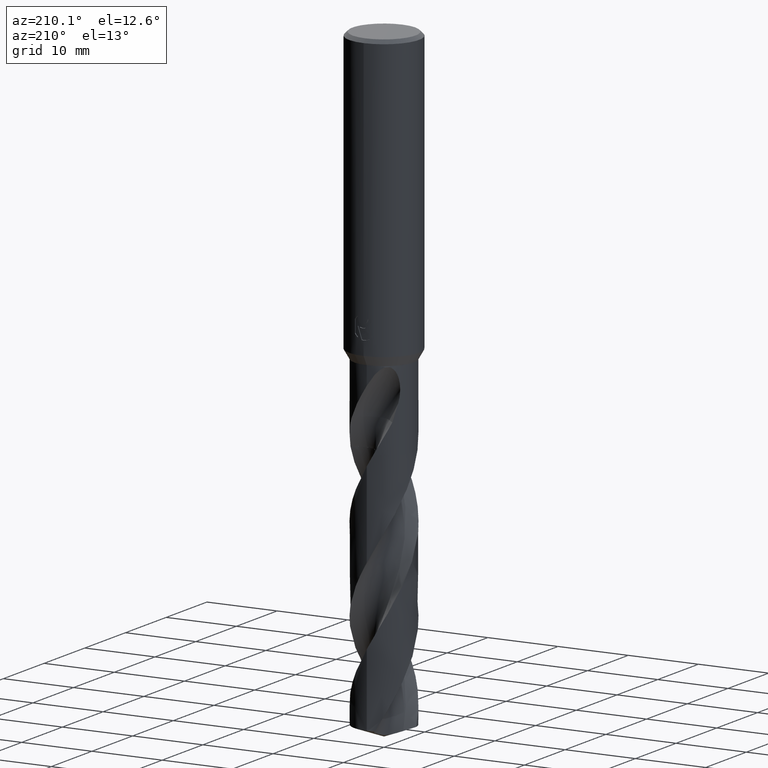
[diagram: clean part render]
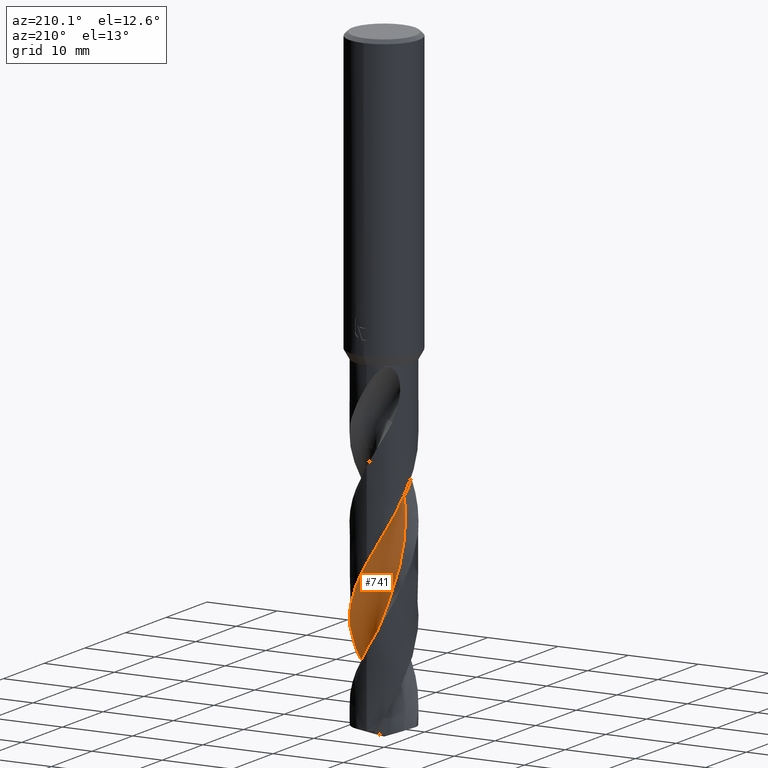
[diagram: same view with one face highlighted and labeled with its STEP entity id]
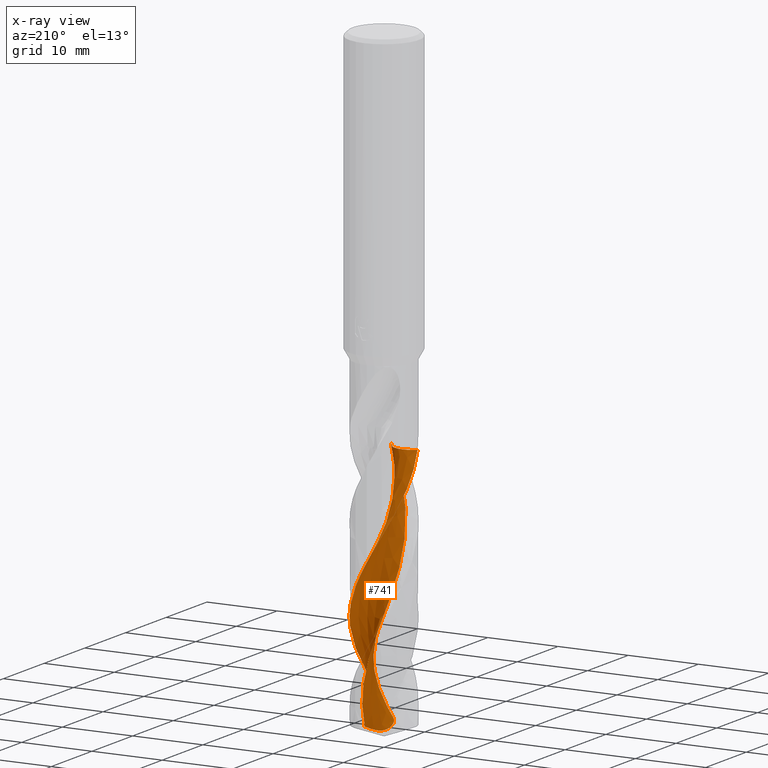
[diagram: x-ray of the same camera — body ghosted, the highlighted face saturated]
A machine part, auxiliary view. The second image highlights one B-rep face of the part: STEP entity #741.
The next image is the same camera in x-ray: the body ghosted, the highlighted face saturated — about 0% of this face is hidden behind the body in this view.
In plain terms, the highlighted face is a freeform B-spline surface patch.
Its self-contained STEP definition (entity closure, byte-faithful):
#287=VERTEX_POINT('',#810);
#395=EDGE_CURVE('',#625,#659,#926,.T.);
#407=EDGE_CURVE('',#535,#625,#940,.T.);
#417=EDGE_CURVE('',#287,#535,#951,.T.);
#535=VERTEX_POINT('',#1077);
#567=VERTEX_POINT('',#1110);
#575=EDGE_CURVE('',#567,#287,#1118,.T.);
#625=VERTEX_POINT('',#1173);
#659=VERTEX_POINT('',#1211);
#705=EDGE_CURVE('',#659,#567,#1260,.T.);
#741=ADVANCED_FACE('',(#1300),#1301,.F.);
#810=CARTESIAN_POINT('',(2.6717971082152,0.138602749724818,-88.0262377526549));
#926=B_SPLINE_CURVE_WITH_KNOTS('',3,(#2744,#2745,#2746,#2747,#2748,#2749,#2750,#2751,#2752,#2753,#2754,#2755,#2756,#2757,#2758,#2759,#2760,#2761,#2762,#2763,#2764,#2765,#2766,#2767,#2768,#2769,#2770,#2771,#2772,#2773,#2774,#2775,#2776,#2777,#2778,#2779,#2780,#2781,#2782,#2783,#2784,#2785,#2786,#2787,#2788,#2789,#2790,#2791,#2792,#2793,#2794,#2795,#2796,#2797,#2798,#2799,#2800,#2801,#2802,#2803),.UNSPECIFIED.,.F.,.F.,(4,2,2,2,2,2,2,2,2,2,2,2,2,2,2,2,2,2,2,2,2,2,2,2,2,2,2,2,2,4),(0.0,2.29751554229338,3.85419713761857,4.21570429836474,5.77993959018392,7.88072847854698,9.23150955527223,10.3599611600164,11.6848246941048,12.3580886024831,13.3478919543972,14.8108387208206,17.1088663479608,18.761461086923,18.8123461574409,21.0045814881553,22.2759081016618,23.4786645164808,24.1627645835341,25.1394573892711,26.3488862223994,28.4471992355647,29.8002890490246,31.7044106817296,33.1766600241367,33.6204326449799,35.1793906356561,37.745772083954,38.3878729434457,40.3069231356241),.UNSPECIFIED.);
#940=B_SPLINE_CURVE_WITH_KNOTS('',3,(#2820,#2821,#2822,#2823,#2824,#2825,#2826,#2827,#2828,#2829,#2830,#2831,#2832,#2833,#2834,#2835,#2836,#2837,#2838,#2839,#2840,#2841,#2842,#2843,#2844,#2845,#2846,#2847,#2848,#2849,#2850,#2851,#2852,#2853,#2854,#2855,#2856,#2857,#2858,#2859,#2860,#2861,#2862,#2863,#2864,#2865,#2866,#2867,#2868,#2869,#2870,#2871,#2872,#2873,#2874,#2875,#2876,#2877,#2878,#2879),.UNSPECIFIED.,.F.,.F.,(4,2,2,2,2,2,2,2,2,2,2,2,2,2,2,2,2,2,2,2,2,2,2,2,2,2,2,2,2,4),(0.0,2.29751554229338,3.85419713761857,4.21570429836474,5.77993959018392,7.88072847854698,9.23150955527223,10.3599611600164,11.6848246941048,12.3580886024831,13.3478919543972,14.8108387208206,17.1088663479608,18.761461086923,18.8123461574409,21.0045814881553,22.2759081016618,23.4786645164808,24.1627645835341,25.1394573892711,26.3488862223994,28.4471992355647,29.8002890490246,31.7044106817296,33.1766600241367,33.6204326449799,35.1793906356561,37.745772083954,38.3878729434457,40.3069231356241),.UNSPECIFIED.);
#951=B_SPLINE_CURVE_WITH_KNOTS('',3,(#2953,#2954,#2955,#2956,#2957,#2958,#2959,#2960,#2961,#2962,#2963,#2964,#2965,#2966,#2967,#2968,#2969,#2970,#2971,#2972),.UNSPECIFIED.,.F.,.F.,(4,2,2,2,2,2,2,2,2,4),(0.0,1.76841711961089,2.97238221567186,4.11861401664552,5.40423584894144,6.79944650857476,8.37565722612227,10.137460798221,11.1985623902722,12.2592229806516),.UNSPECIFIED.);
#1077=CARTESIAN_POINT('',(1.07965947315375,-4.11057604503668,-87.4531265043686));
#1110=CARTESIAN_POINT('',(0.42546679125039,-2.63978069602382,-52.605));
#1118=B_SPLINE_CURVE_WITH_KNOTS('',3,(#5065,#5066,#5067,#5068,#5069,#5070,#5071,#5072,#5073,#5074,#5075,#5076,#5077,#5078,#5079,#5080,#5081,#5082,#5083,#5084,#5085,#5086,#5087,#5088,#5089,#5090,#5091,#5092,#5093,#5094,#5095,#5096,#5097,#5098,#5099,#5100,#5101,#5102,#5103,#5104,#5105,#5106,#5107,#5108,#5109,#5110,#5111,#5112,#5113,#5114,#5115,#5116,#5117),.UNSPECIFIED.,.F.,.F.,(4,1,2,2,2,2,1,2,1,2,1,2,1,2,1,2,1,2,1,2,1,2,1,2,1,2,1,2,1,2,1,2,1,4),(0.0,0.815275673980478,1.63055134796096,3.26110269592191,4.89165404388287,6.52220539184382,8.15275673980478,9.78330808776573,11.4138594357267,13.0444107836876,14.6749621316486,16.3055134796096,17.9360648275705,19.5666161755315,21.1971675234924,22.8277188714534,24.4582702194143,26.0888215673753,27.7193729153362,29.3499242632972,30.9804756112581,32.6110269592191,34.2415783071801,35.872129655141,37.502681003102,39.1332323510629,40.7637836990239,42.3943350469848,44.0248863949458,45.6554377429067,47.2859890908677,48.9165404388286,50.5470917867896,52.1776431347506),.UNSPECIFIED.);
#1173=CARTESIAN_POINT('',(1.16591792519443E-012,4.24993918034888,-66.2555765582582));
#1211=CARTESIAN_POINT('',(-4.07639185603204,-1.20194825138327,-52.605));
#1260=B_SPLINE_CURVE_WITH_KNOTS('',3,(#5892,#5893,#5894,#5895,#5896,#5897,#5898,#5899,#5900,#5901,#5902,#5903,#5904,#5905,#5906,#5907,#5908,#5909,#5910,#5911),.UNSPECIFIED.,.F.,.F.,(4,2,2,2,2,2,2,2,2,4),(-8.92554476637759,-8.33529420912808,-7.74494474639423,-6.63765661109346,-5.5304814986396,-4.4238278081354,-3.31780039597833,-2.21213484421377,-1.10634482706692,-0.0),.UNSPECIFIED.);
#1300=FACE_OUTER_BOUND('',#6609,.T.);
#1301=B_SPLINE_SURFACE_WITH_KNOTS('',3,3,((#6610,#6611,#6612,#6613,#6614,#6615,#6616,#6617,#6618,#6619,#6620,#6621,#6622,#6623,#6624,#6625,#6626,#6627,#6628,#6629,#6630,#6631,#6632,#6633,#6634,#6635,#6636,#6637,#6638,#6639,#6640,#6641,#6642,#6643,#6644,#6645,#6646,#6647,#6648,#6649,#6650,#6651,#6652,#6653,#6654,#6655,#6656,#6657,#6658,#6659,#6660,#6661,#6662),(#6663,#6664,#6665,#6666,#6667,#6668,#6669,#6670,#6671,#6672,#6673,#6674,#6675,#6676,#6677,#6678,#6679,#6680,#6681,#6682,#6683,#6684,#6685,#6686,#6687,#6688,#6689,#6690,#6691,#6692,#6693,#6694,#6695,#6696,#6697,#6698,#6699,#6700,#6701,#6702,#6703,#6704,#6705,#6706,#6707,#6708,#6709,#6710,#6711,#6712,#6713,#6714,#6715),(#6716,#6717,#6718,#6719,#6720,#6721,#6722,#6723,#6724,#6725,#6726,#6727,#6728,#6729,#6730,#6731,#6732,#6733,#6734,#6735,#6736,#6737,#6738,#6739,#6740,#6741,#6742,#6743,#6744,#6745,#6746,#6747,#6748,#6749,#6750,#6751,#6752,#6753,#6754,#6755,#6756,#6757,#6758,#6759,#6760,#6761,#6762,#6763,#6764,#6765,#6766,#6767,#6768),(#6769,#6770,#6771,#6772,#6773,#6774,#6775,#6776,#6777,#6778,#6779,#6780,#6781,#6782,#6783,#6784,#6785,#6786,#6787,#6788,#6789,#6790,#6791,#6792,#6793,#6794,#6795,#6796,#6797,#6798,#6799,#6800,#6801,#6802,#6803,#6804,#6805,#6806,#6807,#6808,#6809,#6810,#6811,#6812,#6813,#6814,#6815,#6816,#6817,#6818,#6819,#6820,#6821),(#6822,#6823,#6824,#6825,#6826,#6827,#6828,#6829,#6830,#6831,#6832,#6833,#6834,#6835,#6836,#6837,#6838,#6839,#6840,#6841,#6842,#6843,#6844,#6845,#6846,#6847,#6848,#6849,#6850,#6851,#6852,#6853,#6854,#6855,#6856,#6857,#6858,#6859,#6860,#6861,#6862,#6863,#6864,#6865,#6866,#6867,#6868,#6869,#6870,#6871,#6872,#6873,#6874),(#6875,#6876,#6877,#6878,#6879,#6880,#6881,#6882,#6883,#6884,#6885,#6886,#6887,#6888,#6889,#6890,#6891,#6892,#6893,#6894,#6895,#6896,#6897,#6898,#6899,#6900,#6901,#6902,#6903,#6904,#6905,#6906,#6907,#6908,#6909,#6910,#6911,#6912,#6913,#6914,#6915,#6916,#6917,#6918,#6919,#6920,#6921,#6922,#6923,#6924,#6925,#6926,#6927),(#6928,#6929,#6930,#6931,#6932,#6933,#6934,#6935,#6936,#6937,#6938,#6939,#6940,#6941,#6942,#6943,#6944,#6945,#6946,#6947,#6948,#6949,#6950,#6951,#6952,#6953,#6954,#6955,#6956,#6957,#6958,#6959,#6960,#6961,#6962,#6963,#6964,#6965,#6966,#6967,#6968,#6969,#6970,#6971,#6972,#6973,#6974,#6975,#6976,#6977,#6978,#6979,#6980),(#6981,#6982,#6983,#6984,#6985,#6986,#6987,#6988,#6989,#6990,#6991,#6992,#6993,#6994,#6995,#6996,#6997,#6998,#6999,#7000,#7001,#7002,#7003,#7004,#7005,#7006,#7007,#7008,#7009,#7010,#7011,#7012,#7013,#7014,#7015,#7016,#7017,#7018,#7019,#7020,#7021,#7022,#7023,#7024,#7025,#7026,#7027,#7028,#7029,#7030,#7031,#7032,#7033),(#7034,#7035,#7036,#7037,#7038,#7039,#7040,#7041,#7042,#7043,#7044,#7045,#7046,#7047,#7048,#7049,#7050,#7051,#7052,#7053,#7054,#7055,#7056,#7057,#7058,#7059,#7060,#7061,#7062,#7063,#7064,#7065,#7066,#7067,#7068,#7069,#7070,#7071,#7072,#7073,#7074,#7075,#7076,#7077,#7078,#7079,#7080,#7081,#7082,#7083,#7084,#7085,#7086),(#7087,#7088,#7089,#7090,#7091,#7092,#7093,#7094,#7095,#7096,#7097,#7098,#7099,#7100,#7101,#7102,#7103,#7104,#7105,#7106,#7107,#7108,#7109,#7110,#7111,#7112,#7113,#7114,#7115,#7116,#7117,#7118,#7119,#7120,#7121,#7122,#7123,#7124,#7125,#7126,#7127,#7128,#7129,#7130,#7131,#7132,#7133,#7134,#7135,#7136,#7137,#7138,#7139),(#7140,#7141,#7142,#7143,#7144,#7145,#7146,#7147,#7148,#7149,#7150,#7151,#7152,#7153,#7154,#7155,#7156,#7157,#7158,#7159,#7160,#7161,#7162,#7163,#7164,#7165,#7166,#7167,#7168,#7169,#7170,#7171,#7172,#7173,#7174,#7175,#7176,#7177,#7178,#7179,#7180,#7181,#7182,#7183,#7184,#7185,#7186,#7187,#7188,#7189,#7190,#7191,#7192)),.UNSPECIFIED.,.F.,.F.,.F.,(4,1,1,1,1,1,1,1,4),(4,1,2,2,2,2,1,2,1,2,1,2,1,2,1,2,1,2,1,2,1,2,1,2,1,2,1,2,1,2,1,2,1,4),(-4.93715282838235E-017,0.392701182115647,0.785402364231295,1.17810354634694,1.57080472846259,1.96350591057824,2.35620709269388,2.74890827480953,3.14160945692518),(0.0,0.815275673980478,1.63055134796096,3.26110269592191,4.89165404388287,6.52220539184382,8.15275673980478,9.78330808776573,11.4138594357267,13.0444107836876,14.6749621316486,16.3055134796096,17.9360648275705,19.5666161755315,21.1971675234924,22.8277188714534,24.4582702194143,26.0888215673753,27.7193729153362,29.3499242632972,30.9804756112581,32.6110269592191,34.2415783071801,35.872129655141,37.502681003102,39.1332323510629,40.7637836990239,42.3943350469848,44.0248863949458,45.6554377429067,47.2859890908677,48.9165404388286,50.5470917867896,52.1776431347506),.UNSPECIFIED.);
#2744=CARTESIAN_POINT('',(1.07965947315375,-4.11057604503668,-87.4531265043687));
#2745=CARTESIAN_POINT('',(1.45174821563612,-4.01284346299921,-86.7909279391318));
#2746=CARTESIAN_POINT('',(1.80789720795227,-3.86535591184367,-86.1239222616972));
#2747=CARTESIAN_POINT('',(2.36366390299523,-3.5416123160703,-85.0127869129268));
#2748=CARTESIAN_POINT('',(2.57544402814208,-3.39068043232703,-84.5668208865885));
#2749=CARTESIAN_POINT('',(2.81757295327436,-3.18234546930155,-84.0134953535482));
#2750=CARTESIAN_POINT('',(2.86230024490347,-3.14217485237856,-83.9091284245969));
#2751=CARTESIAN_POINT('',(3.09590065535449,-2.92325579816566,-83.3541252560357));
#2752=CARTESIAN_POINT('',(3.26924262532435,-2.72810394600505,-82.9061015297173));
#2753=CARTESIAN_POINT('',(3.63150115577713,-2.23548889337385,-81.8513914249777));
#2754=CARTESIAN_POINT('',(3.80325281267367,-1.92878116873445,-81.2448614483615));
#2755=CARTESIAN_POINT('',(4.02042941824312,-1.3961197416177,-80.251192600078));
#2756=CARTESIAN_POINT('',(4.08871719117284,-1.18125924073478,-79.864148088561));
#2757=CARTESIAN_POINT('',(4.18223125449048,-0.778845165351584,-79.1504607650499));
#2758=CARTESIAN_POINT('',(4.21252810024007,-0.593347366800973,-78.8244563663144));
#2759=CARTESIAN_POINT('',(4.25153783407359,-0.187534821314184,-78.1185524258673));
#2760=CARTESIAN_POINT('',(4.25557196956963,0.0331966463060552,-77.7391099823109));
#2761=CARTESIAN_POINT('',(4.23570728438226,0.365537285128519,-77.164793766839));
#2762=CARTESIAN_POINT('',(4.22458895122279,0.477106607975117,-76.9714543207789));
#2763=CARTESIAN_POINT('',(4.18631963128415,0.751039353506949,-76.4931479659428));
#2764=CARTESIAN_POINT('',(4.15413401682346,0.912376171940266,-76.2075112170342));
#2765=CARTESIAN_POINT('',(4.05141094339332,1.30665013771957,-75.5022562209417));
#2766=CARTESIAN_POINT('',(3.97002606517335,1.53636108657617,-75.0839559496561));
#2767=CARTESIAN_POINT('',(3.71101928260412,2.1063864632728,-74.0035541421579));
#2768=CARTESIAN_POINT('',(3.50654239146398,2.43160401460169,-73.3415914469681));
#2769=CARTESIAN_POINT('',(3.08477929739148,2.93631864641532,-72.2068427539324));
#2770=CARTESIAN_POINT('',(2.88869796317796,3.12929727554314,-71.7352107357407));
#2771=CARTESIAN_POINT('',(2.66944721023081,3.30699673137195,-71.2451156281054));
#2772=CARTESIAN_POINT('',(2.6628656592661,3.31229872122158,-71.2304401745666));
#2773=CARTESIAN_POINT('',(2.37092381926264,3.54604006435132,-70.581198427735));
#2774=CARTESIAN_POINT('',(2.05697731864742,3.73702247088415,-69.9544620932741));
#2775=CARTESIAN_POINT('',(1.52739059083242,3.97169150654468,-68.953722853102));
#2776=CARTESIAN_POINT('',(1.32708922829922,4.04301271202138,-68.5849335926352));
#2777=CARTESIAN_POINT('',(0.928576749747615,4.15212161547335,-67.8701804312945));
#2778=CARTESIAN_POINT('',(0.731146976497793,4.19141313032943,-67.5240569976882));
#2779=CARTESIAN_POINT('',(0.417891762545735,4.2308948380543,-66.9793786586341));
#2780=CARTESIAN_POINT('',(0.303903311622543,4.24059998976399,-66.7820817805426));
#2781=CARTESIAN_POINT('',(0.0268512356781822,4.25298280665278,-66.3023275063629));
#2782=CARTESIAN_POINT('',(-0.136158464330496,4.25088446554945,-66.019251174084));
#2783=CARTESIAN_POINT('',(-0.500176203877698,4.22522701237658,-65.3877661141143));
#2784=CARTESIAN_POINT('',(-0.700511520268538,4.19668696317454,-65.0397829785384));
#2785=CARTESIAN_POINT('',(-1.2414202602063,4.07971230695045,-64.0851606931671));
#2786=CARTESIAN_POINT('',(-1.5737695079371,3.96335611441781,-63.4776878314789));
#2787=CARTESIAN_POINT('',(-2.09064560623275,3.70705406373888,-62.4812172191184));
#2788=CARTESIAN_POINT('',(-2.28490035083039,3.59057658500267,-62.0923974542711));
#2789=CARTESIAN_POINT('',(-2.72794234500362,3.27436096726374,-61.1520092217599));
#2790=CARTESIAN_POINT('',(-2.96541986283597,3.06097898084252,-60.6004371902805));
#2791=CARTESIAN_POINT('',(-3.3405776452505,2.63875327891863,-59.6258138240993));
#2792=CARTESIAN_POINT('',(-3.48757473557789,2.44108134739134,-59.2030374532523));
#2793=CARTESIAN_POINT('',(-3.65535095567746,2.16925807022105,-58.6493521854629));
#2794=CARTESIAN_POINT('',(-3.69249641312376,2.10540436482298,-58.520960591555));
#2795=CARTESIAN_POINT('',(-3.85265140485523,1.81280848917576,-57.9424927889832));
#2796=CARTESIAN_POINT('',(-3.95642327026091,1.57367525521405,-57.4951254944686));
#2797=CARTESIAN_POINT('',(-4.17166802870324,0.918218623271444,-56.3055596002328));
#2798=CARTESIAN_POINT('',(-4.24295222726167,0.492807656410541,-55.5649330788039));
#2799=CARTESIAN_POINT('',(-4.25104078001503,-0.0430863440504819,-54.6394772345738));
#2800=CARTESIAN_POINT('',(-4.24859907276991,-0.150343130770212,-54.454527550622));
#2801=CARTESIAN_POINT('',(-4.22268891986625,-0.5773340593352,-53.7158923795869));
#2802=CARTESIAN_POINT('',(-4.16719843953819,-0.894010640739982,-53.1580921748818));
#2803=CARTESIAN_POINT('',(-4.07636418007444,-1.20204209544953,-52.6048314383729));
#2820=CARTESIAN_POINT('',(1.07965947315375,-4.11057604503668,-87.4531265043687));
#2821=CARTESIAN_POINT('',(1.45174821563612,-4.01284346299921,-86.7909279391318));
#2822=CARTESIAN_POINT('',(1.80789720795227,-3.86535591184367,-86.1239222616972));
#2823=CARTESIAN_POINT('',(2.36366390299523,-3.5416123160703,-85.0127869129268));
#2824=CARTESIAN_POINT('',(2.57544402814208,-3.39068043232703,-84.5668208865885));
#2825=CARTESIAN_POINT('',(2.81757295327436,-3.18234546930155,-84.0134953535482));
#2826=CARTESIAN_POINT('',(2.86230024490347,-3.14217485237856,-83.9091284245969));
#2827=CARTESIAN_POINT('',(3.09590065535449,-2.92325579816566,-83.3541252560357));
#2828=CARTESIAN_POINT('',(3.26924262532435,-2.72810394600505,-82.9061015297173));
#2829=CARTESIAN_POINT('',(3.63150115577713,-2.23548889337385,-81.8513914249777));
#2830=CARTESIAN_POINT('',(3.80325281267367,-1.92878116873445,-81.2448614483615));
#2831=CARTESIAN_POINT('',(4.02042941824312,-1.3961197416177,-80.251192600078));
#2832=CARTESIAN_POINT('',(4.08871719117284,-1.18125924073478,-79.864148088561));
#2833=CARTESIAN_POINT('',(4.18223125449048,-0.778845165351584,-79.1504607650499));
#2834=CARTESIAN_POINT('',(4.21252810024007,-0.593347366800973,-78.8244563663144));
#2835=CARTESIAN_POINT('',(4.25153783407359,-0.187534821314184,-78.1185524258673));
#2836=CARTESIAN_POINT('',(4.25557196956963,0.0331966463060552,-77.7391099823109));
#2837=CARTESIAN_POINT('',(4.23570728438226,0.365537285128519,-77.164793766839));
#2838=CARTESIAN_POINT('',(4.22458895122279,0.477106607975117,-76.9714543207789));
#2839=CARTESIAN_POINT('',(4.18631963128415,0.751039353506949,-76.4931479659428));
#2840=CARTESIAN_POINT('',(4.15413401682346,0.912376171940266,-76.2075112170342));
#2841=CARTESIAN_POINT('',(4.05141094339332,1.30665013771957,-75.5022562209417));
#2842=CARTESIAN_POINT('',(3.97002606517335,1.53636108657617,-75.0839559496561));
#2843=CARTESIAN_POINT('',(3.71101928260412,2.1063864632728,-74.0035541421579));
#2844=CARTESIAN_POINT('',(3.50654239146398,2.43160401460169,-73.3415914469681));
#2845=CARTESIAN_POINT('',(3.08477929739148,2.93631864641532,-72.2068427539324));
#2846=CARTESIAN_POINT('',(2.88869796317796,3.12929727554314,-71.7352107357407));
#2847=CARTESIAN_POINT('',(2.66944721023081,3.30699673137195,-71.2451156281054));
#2848=CARTESIAN_POINT('',(2.6628656592661,3.31229872122158,-71.2304401745666));
#2849=CARTESIAN_POINT('',(2.37092381926264,3.54604006435132,-70.581198427735));
#2850=CARTESIAN_POINT('',(2.05697731864742,3.73702247088415,-69.9544620932741));
#2851=CARTESIAN_POINT('',(1.52739059083242,3.97169150654468,-68.953722853102));
#2852=CARTESIAN_POINT('',(1.32708922829922,4.04301271202138,-68.5849335926352));
#2853=CARTESIAN_POINT('',(0.928576749747615,4.15212161547335,-67.8701804312945));
#2854=CARTESIAN_POINT('',(0.731146976497793,4.19141313032943,-67.5240569976882));
#2855=CARTESIAN_POINT('',(0.417891762545735,4.2308948380543,-66.9793786586341));
#2856=CARTESIAN_POINT('',(0.303903311622543,4.24059998976399,-66.7820817805426));
#2857=CARTESIAN_POINT('',(0.0268512356781822,4.25298280665278,-66.3023275063629));
#2858=CARTESIAN_POINT('',(-0.136158464330496,4.25088446554945,-66.019251174084));
#2859=CARTESIAN_POINT('',(-0.500176203877698,4.22522701237658,-65.3877661141143));
#2860=CARTESIAN_POINT('',(-0.700511520268538,4.19668696317454,-65.0397829785384));
#2861=CARTESIAN_POINT('',(-1.2414202602063,4.07971230695045,-64.0851606931671));
#2862=CARTESIAN_POINT('',(-1.5737695079371,3.96335611441781,-63.4776878314789));
#2863=CARTESIAN_POINT('',(-2.09064560623275,3.70705406373888,-62.4812172191184));
#2864=CARTESIAN_POINT('',(-2.28490035083039,3.59057658500267,-62.0923974542711));
#2865=CARTESIAN_POINT('',(-2.72794234500362,3.27436096726374,-61.1520092217599));
#2866=CARTESIAN_POINT('',(-2.96541986283597,3.06097898084252,-60.6004371902805));
#2867=CARTESIAN_POINT('',(-3.3405776452505,2.63875327891863,-59.6258138240993));
#2868=CARTESIAN_POINT('',(-3.48757473557789,2.44108134739134,-59.2030374532523));
#2869=CARTESIAN_POINT('',(-3.65535095567746,2.16925807022105,-58.6493521854629));
#2870=CARTESIAN_POINT('',(-3.69249641312376,2.10540436482298,-58.520960591555));
#2871=CARTESIAN_POINT('',(-3.85265140485523,1.81280848917576,-57.9424927889832));
#2872=CARTESIAN_POINT('',(-3.95642327026091,1.57367525521405,-57.4951254944686));
#2873=CARTESIAN_POINT('',(-4.17166802870324,0.918218623271444,-56.3055596002328));
#2874=CARTESIAN_POINT('',(-4.24295222726167,0.492807656410541,-55.5649330788039));
#2875=CARTESIAN_POINT('',(-4.25104078001503,-0.0430863440504819,-54.6394772345738));
#2876=CARTESIAN_POINT('',(-4.24859907276991,-0.150343130770212,-54.454527550622));
#2877=CARTESIAN_POINT('',(-4.22268891986625,-0.5773340593352,-53.7158923795869));
#2878=CARTESIAN_POINT('',(-4.16719843953819,-0.894010640739982,-53.1580921748818));
#2879=CARTESIAN_POINT('',(-4.07636418007444,-1.20204209544953,-52.6048314383729));
#2953=CARTESIAN_POINT('',(2.67179710821519,0.138602749724802,-88.0262377526549));
#2954=CARTESIAN_POINT('',(2.13992224260733,-0.0227235198494211,-88.2226063877527));
#2955=CARTESIAN_POINT('',(1.67584147339387,-0.277147524014092,-88.396803118319));
#2956=CARTESIAN_POINT('',(1.08728674935881,-0.714119284737348,-88.5356184152722));
#2957=CARTESIAN_POINT('',(0.902183792096718,-0.890206394136456,-88.5464463024857));
#2958=CARTESIAN_POINT('',(0.607494426261778,-1.25757977204,-88.4980371658624));
#2959=CARTESIAN_POINT('',(0.495199150007595,-1.45071009337916,-88.4439576953039));
#2960=CARTESIAN_POINT('',(0.32971526307751,-1.88819420780117,-88.3042528917103));
#2961=CARTESIAN_POINT('',(0.281844065512699,-2.14470987834739,-88.2127367684003));
#2962=CARTESIAN_POINT('',(0.294255081910537,-2.71580878091517,-88.0057961764113));
#2963=CARTESIAN_POINT('',(0.36353577301153,-3.00833718798146,-87.897478076215));
#2964=CARTESIAN_POINT('',(0.622840403933371,-3.5901981852108,-87.6741694175932));
#2965=CARTESIAN_POINT('',(0.824794405246704,-3.86884471192172,-87.5617188036455));
#2966=CARTESIAN_POINT('',(1.35159595673349,-4.36853513913515,-87.3372495069921));
#2967=CARTESIAN_POINT('',(1.68375638051296,-4.57503747099053,-87.2284894539979));
#2968=CARTESIAN_POINT('',(2.26506201278649,-4.80127725901062,-87.0687266315052));
#2969=CARTESIAN_POINT('',(2.49346976142148,-4.8621720415212,-87.012330906442));
#2970=CARTESIAN_POINT('',(2.96033838507989,-4.9343811930567,-86.9067125330662));
#2971=CARTESIAN_POINT('',(3.1980239959298,-4.94559945626475,-86.8576628791983));
#2972=CARTESIAN_POINT('',(3.43536179411921,-4.93186469233556,-86.8123905232026));
#5065=CARTESIAN_POINT('',(2.00346921093415,-2.10486411906585,-48.431));
#5066=CARTESIAN_POINT('',(1.8274867074506,-2.09250513375828,-48.6419962329817));
#5067=CARTESIAN_POINT('',(1.54425233654741,-2.1032893634673,-49.0629774603494));
#5068=CARTESIAN_POINT('',(1.39838892201779,-2.17731682026062,-49.4834842656986));
#5069=CARTESIAN_POINT('',(1.2705594465808,-2.34524024189989,-50.1189113472268));
#5070=CARTESIAN_POINT('',(1.15011093218887,-2.4323642706586,-50.5434067794181));
#5071=CARTESIAN_POINT('',(0.866634532927456,-2.5494810420535,-51.3891128421925));
#5072=CARTESIAN_POINT('',(0.715107657683446,-2.59092287165775,-51.8117595665046));
#5073=CARTESIAN_POINT('',(0.406753274580637,-2.64545602611587,-52.655632922813));
#5074=CARTESIAN_POINT('',(0.253211303719162,-2.66334733138423,-53.0779313030815));
#5075=CARTESIAN_POINT('',(-0.0504901710342925,-2.68314094428152,-53.9243525238536));
#5076=CARTESIAN_POINT('',(-0.360560153015092,-2.66628091727738,-54.7699034847463));
#5077=CARTESIAN_POINT('',(-0.662230311913477,-2.59654618722999,-55.6145277024446));
#5078=CARTESIAN_POINT('',(-0.955221717341657,-2.50784309299588,-56.4599756818373));
#5079=CARTESIAN_POINT('',(-1.24102249229852,-2.38612846372888,-57.3055538747936));
#5080=CARTESIAN_POINT('',(-1.5013501608651,-2.21807847777407,-58.1506599487305));
#5081=CARTESIAN_POINT('',(-1.7473269624873,-2.03637455541207,-58.9959497782233));
#5082=CARTESIAN_POINT('',(-1.97535897836,-1.82586010915759,-59.8414491644163));
#5083=CARTESIAN_POINT('',(-2.16351598676659,-1.57970684838891,-60.6865698082211));
#5084=CARTESIAN_POINT('',(-2.33331516490791,-1.32522439979049,-61.5318824395212));
#5085=CARTESIAN_POINT('',(-2.47651512263503,-1.04978866303918,-62.3773886771284));
#5086=CARTESIAN_POINT('',(-2.57027227980542,-0.754480403282604,-63.2225050906319));
#5087=CARTESIAN_POINT('',(-2.64401932867706,-0.45760147150557,-64.0678185161747));
#5088=CARTESIAN_POINT('',(-2.68563034383238,-0.149985030525802,-64.9133277176562));
#5089=CARTESIAN_POINT('',(-2.67394931459219,0.159630700661355,-65.7584472348148));
#5090=CARTESIAN_POINT('',(-2.64288810122765,0.463959197188153,-66.6037618669764));
#5091=CARTESIAN_POINT('',(-2.57796523593906,0.767514545798336,-67.4492703568487));
#5092=CARTESIAN_POINT('',(-2.46224812551815,1.05491756735871,-68.2943882990393));
#5093=CARTESIAN_POINT('',(-2.33009682401864,1.33079151377079,-69.1397025689913));
#5094=CARTESIAN_POINT('',(-2.16632155458469,1.59448309786609,-69.9852118522922));
#5095=CARTESIAN_POINT('',(-1.96017691837694,1.82578171369952,-70.8303289895718));
#5096=CARTESIAN_POINT('',(-1.74245889618068,2.04066431188477,-71.6756398960605));
#5097=CARTESIAN_POINT('',(-1.49911175314795,2.23338433017918,-72.5211468183615));
#5098=CARTESIAN_POINT('',(-1.22685754941301,2.38128710883786,-73.3662643971687));
#5099=CARTESIAN_POINT('',(-0.949263952171544,2.50982335292116,-74.2115771861124));
#5100=CARTESIAN_POINT('',(-0.655053086440321,2.60883368644194,-75.0570857848503));
#5101=CARTESIAN_POINT('',(-0.348809369709947,2.65589527859692,-75.9022037689276));
#5102=CARTESIAN_POINT('',(-0.0440963228198141,2.68293033217864,-76.7475159307726));
#5103=CARTESIAN_POINT('',(0.266252938527437,2.67658044033741,-77.5930226106346));
#5104=CARTESIAN_POINT('',(0.570349313649124,2.61730007616358,-78.4381462477648));
#5105=CARTESIAN_POINT('',(0.866237165706379,2.53968788229814,-79.2834723987635));
#5106=CARTESIAN_POINT('',(1.1561466756905,2.42868655013948,-80.1289884623721));
#5107=CARTESIAN_POINT('',(1.42224480674751,2.27000026814225,-80.9740839218205));
#5108=CARTESIAN_POINT('',(1.67441866508239,2.09691995474208,-81.8193524338742));
#5109=CARTESIAN_POINT('',(1.90968543748857,1.89451611597362,-82.6648387546771));
#5110=CARTESIAN_POINT('',(2.10633006840636,1.65493626289536,-83.5100352358735));
#5111=CARTESIAN_POINT('',(2.28480485390106,1.4061681692505,-84.3554949639358));
#5112=CARTESIAN_POINT('',(2.4375519749067,1.13575241344553,-85.2010821028848));
#5113=CARTESIAN_POINT('',(2.54262443023827,0.84500674549357,-86.0460434686235));
#5114=CARTESIAN_POINT('',(2.62871901939501,0.552679455743288,-86.8910610802955));
#5115=CARTESIAN_POINT('',(2.68102066848557,0.246669876246106,-87.73645244334));
#5116=CARTESIAN_POINT('',(2.67427539761755,-0.0660780888285975,-88.5812801626395));
#5117=CARTESIAN_POINT('',(2.6596881090761,-0.220315418866685,-89.0036019838582));
#5892=CARTESIAN_POINT('',(-5.02701525072262,-4.17807319183949,-52.605));
#5893=CARTESIAN_POINT('',(-5.08038407130369,-3.988698179213,-52.605));
#5894=CARTESIAN_POINT('',(-5.11387452919483,-3.79427645514544,-52.605));
#5895=CARTESIAN_POINT('',(-5.14002893364359,-3.40161015174071,-52.605));
#5896=CARTESIAN_POINT('',(-5.13261509659499,-3.20443050643586,-52.605));
#5897=CARTESIAN_POINT('',(-5.05273018996026,-2.64421323700548,-52.605));
#5898=CARTESIAN_POINT('',(-4.92973874962083,-2.29247479317433,-52.6050000000001));
#5899=CARTESIAN_POINT('',(-4.55589694963168,-1.65597779193127,-52.6050000000001));
#5900=CARTESIAN_POINT('',(-4.30862199952034,-1.37727761363533,-52.605));
#5901=CARTESIAN_POINT('',(-3.72132031727121,-0.930457797676893,-52.605));
#5902=CARTESIAN_POINT('',(-3.38693453487318,-0.76654480389205,-52.605));
#5903=CARTESIAN_POINT('',(-2.67436269881429,-0.576177318141537,-52.605));
#5904=CARTESIAN_POINT('',(-2.30300696917699,-0.551463930833151,-52.605));
#5905=CARTESIAN_POINT('',(-1.57183656272807,-0.645768550307197,-52.605));
#5906=CARTESIAN_POINT('',(-1.2190201149849,-0.763837222223253,-52.605));
#5907=CARTESIAN_POINT('',(-0.578453593863843,-1.12860663661247,-52.605));
#5908=CARTESIAN_POINT('',(-0.296856390935307,-1.37182250616447,-52.605));
#5909=CARTESIAN_POINT('',(0.157385118046751,-1.95266945738606,-52.605));
#5910=CARTESIAN_POINT('',(0.32561658149989,-2.28477392036191,-52.605));
#5911=CARTESIAN_POINT('',(0.425466791250392,-2.63978069602381,-52.605));
#6609=EDGE_LOOP('',(#8785,#8786,#8787,#8788,#8789));
#6610=CARTESIAN_POINT('',(-2.00346921093415,-6.11180254093415,-48.431));
#6611=CARTESIAN_POINT('',(-2.17417155482567,-6.10472371266009,-48.6421303646466));
#6612=CARTESIAN_POINT('',(-2.51931896833507,-6.05550061057624,-49.0665063093452));
#6613=CARTESIAN_POINT('',(-2.86403537245786,-5.91651373555004,-49.4921339590899));
#6614=CARTESIAN_POINT('',(-3.36590789861316,-5.62692154267848,-50.1249646638831));
#6615=CARTESIAN_POINT('',(-3.68113462564363,-5.41198828991928,-50.5453433759274));
#6616=CARTESIAN_POINT('',(-4.27661774459947,-4.95073323245226,-51.3900540724617));
#6617=CARTESIAN_POINT('',(-4.55522659976782,-4.69708522134004,-51.8127814370685));
#6618=CARTESIAN_POINT('',(-5.06620296919371,-4.14846629084025,-52.6597470865309));
#6619=CARTESIAN_POINT('',(-5.29750747035719,-3.85103136989371,-53.0827878530594));
#6620=CARTESIAN_POINT('',(-5.70184974765678,-3.21529139198177,-53.9268511083889));
#6621=CARTESIAN_POINT('',(-6.0536468398391,-2.54761863929687,-54.7719070325167));
#6622=CARTESIAN_POINT('',(-6.28645678892015,-1.83019418210633,-55.6179878255574));
#6623=CARTESIAN_POINT('',(-6.4530742265657,-1.09617784554119,-56.4631491604488));
#6624=CARTESIAN_POINT('',(-6.55865836006758,-0.349620528270284,-57.3081659736928));
#6625=CARTESIAN_POINT('',(-6.53544839927712,0.404418569317616,-58.1537110215097));
#6626=CARTESIAN_POINT('',(-6.44363773863688,1.15176921396794,-58.9990504895139));
#6627=CARTESIAN_POINT('',(-6.29007669897986,1.89010610651126,-59.8441555488902));
#6628=CARTESIAN_POINT('',(-6.01299420298174,2.59174516789554,-60.689683604925));
#6629=CARTESIAN_POINT('',(-5.67385047039499,3.26392350035849,-61.5349972125961));
#6630=CARTESIAN_POINT('',(-5.27964638329126,3.90676941941254,-62.3800945633811));
#6631=CARTESIAN_POINT('',(-4.78155203571877,4.47330736869164,-63.2256275374721));
#6632=CARTESIAN_POINT('',(-4.23497279165605,4.99110024001101,-64.0709403640888));
#6633=CARTESIAN_POINT('',(-3.64650743080254,5.46265779926839,-64.9160344246544));
#6634=CARTESIAN_POINT('',(-2.98610791493731,5.82726455615437,-65.7615638776279));
#6635=CARTESIAN_POINT('',(-2.29658102758389,6.1296055023952,-66.6068753131999));
#6636=CARTESIAN_POINT('',(-1.58327591659803,6.37426524557142,-67.451970136236));
#6637=CARTESIAN_POINT('',(-0.838454529199569,6.49392760403628,-68.2975013704605));
#6638=CARTESIAN_POINT('',(-0.0872879596252351,6.54512793764515,-69.1428132759511));
#6639=CARTESIAN_POINT('',(0.66673320795834,6.53400443957569,-69.9879073213845));
#6640=CARTESIAN_POINT('',(1.40811315066564,6.39460520619899,-70.8334394223202));
#6641=CARTESIAN_POINT('',(2.13229910712854,6.18864413247511,-71.6787548679569));
#6642=CARTESIAN_POINT('',(2.83808444324445,5.92306981678,-72.5238511481541));
#6643=CARTESIAN_POINT('',(3.48857599996096,5.54106612941289,-73.3693828635691));
#6644=CARTESIAN_POINT('',(4.10037140090831,5.10224691459312,-74.2146970108278));
#6645=CARTESIAN_POINT('',(4.67468577058485,4.6135564494539,-75.0597929190843));
#6646=CARTESIAN_POINT('',(5.15757929438709,4.03400908605683,-75.905323771053));
#6647=CARTESIAN_POINT('',(5.58483638011616,3.41408731164205,-76.7506355989576));
#6648=CARTESIAN_POINT('',(5.9599452264858,2.75990704677742,-77.5957280227125));
#6649=CARTESIAN_POINT('',(6.21826927099853,2.05113967479365,-78.4412540508285));
#6650=CARTESIAN_POINT('',(6.41057110417117,1.32319339179934,-79.286561472667));
#6651=CARTESIAN_POINT('',(6.54222535522317,0.580660718995892,-80.1316643655491));
#6652=CARTESIAN_POINT('',(6.54551212882607,-0.173702141478676,-80.9772168751367));
#6653=CARTESIAN_POINT('',(6.48015359510846,-0.923745701632406,-81.8225480022211));
#6654=CARTESIAN_POINT('',(6.35276027636915,-1.66696028998699,-82.6676077458653));
#6655=CARTESIAN_POINT('',(6.1007249469224,-2.3779453934104,-83.5130780243537));
#6656=CARTESIAN_POINT('',(5.78573395158556,-3.06180469722396,-84.3583688870457));
#6657=CARTESIAN_POINT('',(5.41455514436097,-3.71843819798765,-85.2036320798877));
#6658=CARTESIAN_POINT('',(4.9360623559377,-4.30203683316819,-86.0493728907179));
#6659=CARTESIAN_POINT('',(4.40685212315545,-4.83794229143427,-86.8947144893249));
#6660=CARTESIAN_POINT('',(3.83533943512552,-5.32899861888233,-87.7393021860755));
#6661=CARTESIAN_POINT('',(3.19140416880305,-5.71830189034055,-88.5841009893223));
#6662=CARTESIAN_POINT('',(2.85456060537199,-5.88362955295315,-89.0065620738592));
#6663=CARTESIAN_POINT('',(-2.26571321039674,-5.84953672274002,-48.431));
#6664=CARTESIAN_POINT('',(-2.43676115468351,-5.84280346642532,-48.6421402022816));
#6665=CARTESIAN_POINT('',(-2.77798098182372,-5.78952833603665,-49.0667651144074));
#6666=CARTESIAN_POINT('',(-3.10875414693507,-5.63752649692869,-49.4927683252757));
#6667=CARTESIAN_POINT('',(-3.58068156139604,-5.32345472313563,-50.125408613834));
#6668=CARTESIAN_POINT('',(-3.87613841005344,-5.09577418652622,-50.5454854045823));
#6669=CARTESIAN_POINT('',(-4.43376616097938,-4.61409981802908,-51.3901231030133));
#6670=CARTESIAN_POINT('',(-4.6930610072979,-4.3521350755857,-51.8128563788694));
#6671=CARTESIAN_POINT('',(-5.16456020214913,-3.79025609523173,-52.6600488203961));
#6672=CARTESIAN_POINT('',(-5.37522622275308,-3.48773247814512,-53.083144035462));
#6673=CARTESIAN_POINT('',(-5.73666364999651,-2.84540735346827,-53.9270343499942));
#6674=CARTESIAN_POINT('',(-6.04586481662635,-2.1750053164594,-54.7720539756024));
#6675=CARTESIAN_POINT('',(-6.23628343615774,-1.46208957595535,-55.6182415876727));
#6676=CARTESIAN_POINT('',(-6.36066536681263,-0.736346208211028,-56.4633819052778));
#6677=CARTESIAN_POINT('',(-6.42535396125224,-0.00158579813003384,-57.3083575430119));
#6678=CARTESIAN_POINT('',(-6.36379164009195,0.733894082212746,-58.1539347868829));
#6679=CARTESIAN_POINT('',(-6.23496022391194,1.45913491764332,-58.9992778946818));
#6680=CARTESIAN_POINT('',(-6.04685416441646,2.17249504416443,-59.8443540357829));
#6681=CARTESIAN_POINT('',(-5.73996129153782,2.84368281556477,-60.6899119680059));
#6682=CARTESIAN_POINT('',(-5.37348067921859,3.48254958965397,-61.535225651506));
#6683=CARTESIAN_POINT('',(-4.95523101028146,4.0902213289583,-62.3802930097902));
#6684=CARTESIAN_POINT('',(-4.43938624285798,4.61802171126792,-63.2258565403752));
#6685=CARTESIAN_POINT('',(-3.87834983565513,5.0952134950408,-64.0711693164393));
#6686=CARTESIAN_POINT('',(-3.27915623204131,5.52553201991759,-64.9162329436835));
#6687=CARTESIAN_POINT('',(-2.6151593208974,5.8476798391379,-65.7617924354395));
#6688=CARTESIAN_POINT('',(-1.92576432554638,6.10692408781427,-66.6071036688007));
#6689=CARTESIAN_POINT('',(-1.21631571459107,6.30914727846934,-67.4521681348611));
#6690=CARTESIAN_POINT('',(-0.482474721475911,6.38763506654588,-68.2977296715814));
#6691=CARTESIAN_POINT('',(0.253985216847095,6.39832135172484,-69.1430414254139));
#6692=CARTESIAN_POINT('',(0.990018082730819,6.34856692245955,-69.9881050063173));
#6693=CARTESIAN_POINT('',(1.70713429323788,6.17413742544859,-70.8336675303158));
#6694=CARTESIAN_POINT('',(2.40377455570903,5.93502908331697,-71.6789833298214));
#6695=CARTESIAN_POINT('',(3.07956319869478,5.63918937199244,-72.5240494782563));
#6696=CARTESIAN_POINT('',(3.69537120793279,5.23243141535774,-73.3696115704901));
#6697=CARTESIAN_POINT('',(4.27003216663016,4.77174018175501,-74.2149258188542));
#6698=CARTESIAN_POINT('',(4.80588066610888,4.26471851043262,-75.059991452852));
#6699=CARTESIAN_POINT('',(5.24776199895846,3.67361109626236,-75.9055526043774));
#6700=CARTESIAN_POINT('',(5.63267529380681,3.04567056361341,-76.7508643817293));
#6701=CARTESIAN_POINT('',(5.9653833757554,2.3872535492074,-77.5959264457468));
#6702=CARTESIAN_POINT('',(6.18119845786026,1.68148376804445,-78.4414819721144));
#6703=CARTESIAN_POINT('',(6.33093609036663,0.960318997471179,-79.2867880290299));
#6704=CARTESIAN_POINT('',(6.42125695047495,0.228145879063354,-80.1318606029466));
#6705=CARTESIAN_POINT('',(6.38555726877951,-0.509014275528845,-80.9774466664834));
#6706=CARTESIAN_POINT('',(6.28243724340168,-1.23827369211323,-81.822782343311));
#6707=CARTESIAN_POINT('',(6.11964877589848,-1.95775064516617,-82.6678108461268));
#6708=CARTESIAN_POINT('',(5.83676110341547,-2.63936825023482,-83.5133011569665));
#6709=CARTESIAN_POINT('',(5.49329465509041,-3.29092893914407,-84.3585796847989));
#6710=CARTESIAN_POINT('',(5.09683927576718,-3.91327035109105,-85.2038190819115));
#6711=CARTESIAN_POINT('',(4.59918077225667,-4.45867366765864,-86.0496170705151));
#6712=CARTESIAN_POINT('',(4.05402999572884,-4.95430660567207,-86.8949824288925));
#6713=CARTESIAN_POINT('',(3.47040768429757,-5.40453372984781,-87.739511185005));
#6714=CARTESIAN_POINT('',(2.82146360135094,-5.75213257017732,-88.5843078700509));
#6715=CARTESIAN_POINT('',(2.48389505844506,-5.89636846338398,-89.0067791662338));
#6716=CARTESIAN_POINT('',(-2.68579716556185,-5.22083064584983,-48.431));
#6717=CARTESIAN_POINT('',(-2.85767359210364,-5.21465095717637,-48.6421563806504));
#6718=CARTESIAN_POINT('',(-3.1894285401922,-5.15483535491535,-49.0671907653456));
#6719=CARTESIAN_POINT('',(-3.48714574463424,-4.98235346324749,-49.4938116544047));
#6720=CARTESIAN_POINT('',(-3.88946078260027,-4.63124104196138,-50.1261387658367));
#6721=CARTESIAN_POINT('',(-4.14031699191343,-4.38593323599747,-50.5457189998604));
#6722=CARTESIAN_POINT('',(-4.61412992709556,-3.878482563561,-51.390236632085));
#6723=CARTESIAN_POINT('',(-4.83149763146533,-3.60756833315115,-51.8129796382014));
#6724=CARTESIAN_POINT('',(-5.21878607342017,-3.03487343148835,-52.6605450710964));
#6725=CARTESIAN_POINT('',(-5.38616023395299,-2.7303816778404,-53.0837298267335));
#6726=CARTESIAN_POINT('',(-5.65918734724282,-2.09195082708439,-53.9273357373047));
#6727=CARTESIAN_POINT('',(-5.88212927188125,-1.4330302203708,-54.7722956393292));
#6728=CARTESIAN_POINT('',(-5.9895760227057,-0.745987476632542,-55.6186589511538));
#6729=CARTESIAN_POINT('',(-6.03279458694127,-0.0535820875022016,-56.4637646888743));
#6730=CARTESIAN_POINT('',(-6.02040052332497,0.641326779187969,-57.3086726167829));
#6731=CARTESIAN_POINT('',(-5.88952997519841,1.32444471899941,-58.1543028073887));
#6732=CARTESIAN_POINT('',(-5.69546487203837,1.99075343137375,-58.9996519042585));
#6733=CARTESIAN_POINT('',(-5.44821570382091,2.64043324058626,-59.8446804811944));
#6734=CARTESIAN_POINT('',(-5.09382398447468,3.2388767542069,-60.6902875533135));
#6735=CARTESIAN_POINT('',(-4.68592791976667,3.80026355815756,-61.5356013581935));
#6736=CARTESIAN_POINT('',(-4.2335847227143,4.32803969245333,-62.3806193966171));
#6737=CARTESIAN_POINT('',(-3.69765108588755,4.77132254262755,-63.2262331650814));
#6738=CARTESIAN_POINT('',(-3.12385203761885,5.16158018308919,-64.0715458804846));
#6739=CARTESIAN_POINT('',(-2.51960573171052,5.50517174728462,-64.9165594147697));
#6740=CARTESIAN_POINT('',(-1.86529990819174,5.74098903766975,-65.7621683855456));
#6741=CARTESIAN_POINT('',(-1.19330664050195,5.91411046688888,-66.6074791939419));
#6742=CARTESIAN_POINT('',(-0.508444888387791,6.03301202397478,-67.4524937800963));
#6743=CARTESIAN_POINT('',(0.187066321608215,6.03353452160019,-68.2981051968972));
#6744=CARTESIAN_POINT('',(0.878008221170562,5.96905803887117,-69.1434166141639));
#6745=CARTESIAN_POINT('',(1.56270993509651,5.8492113330199,-69.9884301427586));
#6746=CARTESIAN_POINT('',(2.21737863510929,5.61438485032942,-70.8340427210956));
#6747=CARTESIAN_POINT('',(2.8457576559611,5.31994985063005,-71.6793590492581));
#6748=CARTESIAN_POINT('',(3.44953007797233,4.97552070067322,-72.5243756785463));
#6749=CARTESIAN_POINT('',(3.98614173542348,4.53305699622736,-73.3699877238976));
#6750=CARTESIAN_POINT('',(4.47785173535333,4.04339796520917,-74.2153021300401));
#6751=CARTESIAN_POINT('',(4.92949503878575,3.51501808521754,-75.0603179934052));
#6752=CARTESIAN_POINT('',(5.28477223962586,2.91710448018966,-75.9059289326279));
#6753=CARTESIAN_POINT('',(5.58182702590477,2.28996840290436,-76.7512406844334));
#6754=CARTESIAN_POINT('',(5.82806661845872,1.6399409232711,-77.5962527668533));
#6755=CARTESIAN_POINT('',(5.96007372468513,0.957069323852754,-78.4418568419502));
#6756=CARTESIAN_POINT('',(6.02739762008247,0.266390956135779,-79.2871606283902));
#6757=CARTESIAN_POINT('',(6.03918874338634,-0.428630612313845,-80.1321833968885));
#6758=CARTESIAN_POINT('',(5.93237344178207,-1.11588911836814,-80.977824518596));
#6759=CARTESIAN_POINT('',(5.7620114382853,-1.7885726234267,-81.8231678394206));
#6760=CARTESIAN_POINT('',(5.53788718483318,-2.44650893214922,-82.6681447925387));
#6761=CARTESIAN_POINT('',(5.2049861743388,-3.05713504692657,-83.5136682336724));
#6762=CARTESIAN_POINT('',(4.81742483582237,-3.63278846165545,-84.3589262836822));
#6763=CARTESIAN_POINT('',(4.38406364771072,-4.1765085519678,-85.2041266777175));
#6764=CARTESIAN_POINT('',(3.86327068928284,-4.63791581068367,-86.0500186873918));
#6765=CARTESIAN_POINT('',(3.30226040615791,-5.04668170160702,-86.8954230832403));
#6766=CARTESIAN_POINT('',(2.71066029410699,-5.41045202539018,-87.7398549418302));
#6767=CARTESIAN_POINT('',(2.06828501390552,-5.67266778887527,-88.584648100014));
#6768=CARTESIAN_POINT('',(1.7376542441968,-5.77444069716227,-89.0071362131977));
#6769=CARTESIAN_POINT('',(-2.9070950439224,-4.10833580627303,-48.4309999999997));
#6770=CARTESIAN_POINT('',(-3.08043746324775,-4.10244773257167,-48.6421664812448));
#6771=CARTESIAN_POINT('',(-3.39532010749916,-4.03900089521005,-49.0674564811917));
#6772=CARTESIAN_POINT('',(-3.6354681908249,-3.85711000088554,-49.4944629616482));
#6773=CARTESIAN_POINT('',(-3.92004134637456,-3.49462329155886,-50.1265945698883));
#6774=CARTESIAN_POINT('',(-4.0989647962768,-3.25048873133442,-50.5458648189701));
#6775=CARTESIAN_POINT('',(-4.44181903434336,-2.7554279838962,-51.3903075083983));
#6776=CARTESIAN_POINT('',(-4.59594104195111,-2.49617879043357,-51.8130565844172));
#6777=CARTESIAN_POINT('',(-4.86031018474459,-1.95683488872508,-52.6608548594577));
#6778=CARTESIAN_POINT('',(-4.96655493382357,-1.67446713754188,-53.084095527758));
#6779=CARTESIAN_POINT('',(-5.11928668079741,-1.09218590073917,-53.9275238653032));
#6780=CARTESIAN_POINT('',(-5.22927004074954,-0.498695158313251,-54.7724465106159));
#6781=CARTESIAN_POINT('',(-5.23657576010197,0.104859258519848,-55.6189194884773));
#6782=CARTESIAN_POINT('',(-5.18644507617648,0.704468355270232,-56.4640036503896));
#6783=CARTESIAN_POINT('',(-5.09009648833584,1.29989610652438,-57.3088692995558));
#6784=CARTESIAN_POINT('',(-4.89322784136228,1.87065735498758,-58.1545325515166));
#6785=CARTESIAN_POINT('',(-4.64258336280255,2.41784252589031,-58.9998853789247));
#6786=CARTESIAN_POINT('',(-4.34992164293974,2.9453143738638,-59.8448842668208));
#6787=CARTESIAN_POINT('',(-3.97145870701413,3.4156724058471,-60.6905220214148));
#6788=CARTESIAN_POINT('',(-3.55064116160246,3.84590248627682,-61.5358358907213));
#6789=CARTESIAN_POINT('',(-3.09691091761431,4.24337714446309,-62.3808231437774));
#6790=CARTESIAN_POINT('',(-2.58165292961552,4.55799231259701,-63.226468287391));
#6791=CARTESIAN_POINT('',(-2.04007047018054,4.82043857227881,-64.0717809428668));
#6792=CARTESIAN_POINT('',(-1.47860732892445,5.0409318630843,-64.9167632322421));
#6793=CARTESIAN_POINT('',(-0.887290946050067,5.16266397391008,-65.7624030566761));
#6794=CARTESIAN_POINT('',(-0.288854313590154,5.22641445999185,-66.607713637837));
#6795=CARTESIAN_POINT('',(0.314100644024702,5.2439519318772,-67.4526970759831));
#6796=CARTESIAN_POINT('',(0.911733190254457,5.15842302978517,-68.2983395848431));
#6797=CARTESIAN_POINT('',(1.49644276107946,5.01590574694904,-69.1436508660544));
#6798=CARTESIAN_POINT('',(2.06976622559047,4.82838259123603,-69.9886330943196));
#6799=CARTESIAN_POINT('',(2.60321584288752,4.54569807210309,-70.8342769356337));
#6800=CARTESIAN_POINT('',(3.10522892203804,4.21376954555412,-71.679593597022));
#6801=CARTESIAN_POINT('',(3.58129875711265,3.84333980670241,-72.5245793133317));
#6802=CARTESIAN_POINT('',(3.98765259880296,3.39685316304671,-73.3702225365781));
#6803=CARTESIAN_POINT('',(4.34776907644958,2.91466490104553,-74.2155370499854));
#6804=CARTESIAN_POINT('',(4.67044883859844,2.40502221729317,-75.0605218344343));
#6805=CARTESIAN_POINT('',(4.9017914049462,1.84739097497263,-75.9061638640259));
#6806=CARTESIAN_POINT('',(5.07754195405964,1.27180521957459,-76.7514755895124));
#6807=CARTESIAN_POINT('',(5.20875802740819,0.683042568431131,-77.5964564818061));
#6808=CARTESIAN_POINT('',(5.23775763203591,0.0800164785728786,-78.4420908506734));
#6809=CARTESIAN_POINT('',(5.20836238855689,-0.521099966088608,-79.2873932338845));
#6810=CARTESIAN_POINT('',(5.13264348764702,-1.11955172373508,-80.1323848803424));
#6811=CARTESIAN_POINT('',(4.95591284306341,-1.69682580728098,-80.9780604360295));
#6812=CARTESIAN_POINT('',(4.7248354886844,-2.25249846154715,-81.8234084488174));
#6813=CARTESIAN_POINT('',(4.45103150898636,-2.7899335302705,-82.6683533203135));
#6814=CARTESIAN_POINT('',(4.08956820238041,-3.27345993618781,-83.5138973068719));
#6815=CARTESIAN_POINT('',(3.68446904073074,-3.71859811420551,-84.3591427287099));
#6816=CARTESIAN_POINT('',(3.24509169115821,-4.13216842862759,-85.2043186719019));
#6817=CARTESIAN_POINT('',(2.74045397982294,-4.46388240637773,-86.0502693730623));
#6818=CARTESIAN_POINT('',(2.20732973418301,-4.74315217614955,-86.8956981927794));
#6819=CARTESIAN_POINT('',(1.65430371652067,-4.9825194553616,-87.7400695060182));
#6820=CARTESIAN_POINT('',(1.07004674881011,-5.13017077431266,-88.5848605224404));
#6821=CARTESIAN_POINT('',(0.773407239335638,-5.17707549648014,-89.0073591028969));
#6822=CARTESIAN_POINT('',(-2.68581194391916,-2.99583802708113,-48.431));
#6823=CARTESIAN_POINT('',(-2.8606203603317,-2.98965836155811,-48.6421608715191));
#6824=CARTESIAN_POINT('',(-3.15852534804541,-2.92931353361602,-49.0673089234907));
#6825=CARTESIAN_POINT('',(-3.34188697833099,-2.76076024945687,-49.4941012758753));
#6826=CARTESIAN_POINT('',(-3.51332753596471,-2.43282333264691,-50.1263414516578));
#6827=CARTESIAN_POINT('',(-3.62624241941055,-2.21730055856653,-50.5457838398704));
#6828=CARTESIAN_POINT('',(-3.85284811654536,-1.78380259680329,-51.390268151604));
#6829=CARTESIAN_POINT('',(-3.95300278831102,-1.55953370430287,-51.8130138563333));
#6830=CARTESIAN_POINT('',(-4.11657250848479,-1.09804133888897,-52.6606828250421));
#6831=CARTESIAN_POINT('',(-4.17480766808451,-0.859506697961027,-53.0838924452778));
#6832=CARTESIAN_POINT('',(-4.23788857290861,-0.375136372881667,-53.9274193939395));
#6833=CARTESIAN_POINT('',(-4.26855094894363,0.114677501762008,-54.7723627271313));
#6834=CARTESIAN_POINT('',(-4.2152883011399,0.602776447656841,-55.6187748082517));
#6835=CARTESIAN_POINT('',(-4.11442597662762,1.08092960329071,-56.4638709475589));
#6836=CARTESIAN_POINT('',(-3.97858354308765,1.55232065701998,-57.3087600771258));
#6837=CARTESIAN_POINT('',(-3.76373790900956,1.99402147869718,-58.1544049714813));
#6838=CARTESIAN_POINT('',(-3.50640776227928,2.40949884895236,-58.9997557230393));
#6839=CARTESIAN_POINT('',(-3.21855754903696,2.80668660067008,-59.8447710961695));
#6840=CARTESIAN_POINT('',(-2.86687213809028,3.149497517268,-60.6903918257709));
#6841=CARTESIAN_POINT('',(-2.48430846049728,3.45360981195228,-61.5357056396588));
#6842=CARTESIAN_POINT('',(-2.0791612227215,3.73017087534036,-62.3807100046797));
#6843=CARTESIAN_POINT('',(-1.63224423790348,3.9338249914589,-63.2263377157949));
#6844=CARTESIAN_POINT('',(-1.16933752716387,4.09051784695916,-64.0716504102182));
#6845=CARTESIAN_POINT('',(-0.69450877682282,4.21365571202029,-64.916650037231));
#6846=CARTESIAN_POINT('',(-0.205045678110011,4.2540921004389,-65.7622727567157));
#6847=CARTESIAN_POINT('',(0.283578879014258,4.24494613045213,-66.6075834275696));
#6848=CARTESIAN_POINT('',(0.772071317249199,4.20017998293031,-67.4525842035978));
#6849=CARTESIAN_POINT('',(1.24634527474286,4.0726067602872,-68.2982093972406));
#6850=CARTESIAN_POINT('',(1.70304398352503,3.89864277028319,-69.143520807305));
#6851=CARTESIAN_POINT('',(2.14756862914058,3.69121760559324,-69.9885203738794));
#6852=CARTESIAN_POINT('',(2.5507119804754,3.41070680712454,-70.8341468779854));
#6853=CARTESIAN_POINT('',(2.92163002458386,3.09249719667352,-71.679463340311));
#6854=CARTESIAN_POINT('',(3.269768071578,2.74691597068713,-72.524466240142));
#6855=CARTESIAN_POINT('',(3.55423999725728,2.34656035463563,-73.3700921271028));
#6856=CARTESIAN_POINT('',(3.79563896072109,1.92163307528988,-74.215406606255));
#6857=CARTESIAN_POINT('',(4.00634246767324,1.47865376106507,-75.0604086368718));
#6858=CARTESIAN_POINT('',(4.13859993947306,1.00566647926795,-75.9060333886512));
#6859=CARTESIAN_POINT('',(4.22200763524552,0.524128304865486,-76.7513451540121));
#6860=CARTESIAN_POINT('',(4.27040104448546,0.0359847797607708,-77.5963433521731));
#6861=CARTESIAN_POINT('',(4.2347899075211,-0.453854328957348,-78.4419608918642));
#6862=CARTESIAN_POINT('',(4.15031195020456,-0.935213410220844,-79.2872640712103));
#6863=CARTESIAN_POINT('',(4.03070021447841,-1.41095754043447,-80.1322729779569));
#6864=CARTESIAN_POINT('',(3.8314657026529,-1.85986382299359,-80.9779294453636));
#6865=CARTESIAN_POINT('',(3.58907304050829,-2.28419776080959,-81.8232748133149));
#6866=CARTESIAN_POINT('',(3.31548507627593,-2.69129256009628,-82.6682375397372));
#6867=CARTESIAN_POINT('',(2.97627285089337,-3.04646388801108,-83.5137700776974));
#6868=CARTESIAN_POINT('',(2.60491712765669,-3.36431033385635,-84.3590225514801));
#6869=CARTESIAN_POINT('',(2.20978799514299,-3.65533570697325,-85.2042120587913));
#6870=CARTESIAN_POINT('',(1.7697074446435,-3.87341124730996,-86.0501301307827));
#6871=CARTESIAN_POINT('',(1.31190274119801,-4.04371389896522,-86.8955454490318));
#6872=CARTESIAN_POINT('',(0.842121787148746,-4.18290951235733,-87.7399503297901));
#6873=CARTESIAN_POINT('',(0.355401213018357,-4.24695821404775,-88.5847425763134));
#6874=CARTESIAN_POINT('',(0.111162750296812,-4.25617933487048,-89.0072353271811));
#6875=CARTESIAN_POINT('',(-2.05563656732606,-2.05270679878553,-48.4310000000002));
#6876=CARTESIAN_POINT('',(-2.23168780052373,-2.04569671590804,-48.6421404081624));
#6877=CARTESIAN_POINT('',(-2.51509449742142,-1.99471490007066,-49.0667705550225));
#6878=CARTESIAN_POINT('',(-2.65109765618968,-1.86021528498565,-49.4927816619597));
#6879=CARTESIAN_POINT('',(-2.73123849837816,-1.60749228603757,-50.1254179446854));
#6880=CARTESIAN_POINT('',(-2.79411833535505,-1.44366391285704,-50.545488392406));
#6881=CARTESIAN_POINT('',(-2.93688358627656,-1.11152912085727,-51.3901245521024));
#6882=CARTESIAN_POINT('',(-3.00056541892221,-0.940230317218612,-51.8128579571526));
#6883=CARTESIAN_POINT('',(-3.10080156555362,-0.589237682494253,-52.6600551606358));
#6884=CARTESIAN_POINT('',(-3.13145606657749,-0.409572003278554,-53.0831515182868));
#6885=CARTESIAN_POINT('',(-3.14917929951441,-0.049967692015428,-53.9270382070064));
#6886=CARTESIAN_POINT('',(-3.14623432371125,0.313706351439177,-54.7720570607194));
#6887=CARTESIAN_POINT('',(-3.08119703826818,0.671959907353335,-55.6182469252864));
#6888=CARTESIAN_POINT('',(-2.97994420869924,1.01848824354082,-56.4633867950734));
#6889=CARTESIAN_POINT('',(-2.85508124099847,1.36017067237833,-57.3083615726157));
#6890=CARTESIAN_POINT('',(-2.67301659718523,1.67575582356026,-58.1539394890849));
#6891=CARTESIAN_POINT('',(-2.45991233276629,1.9669926618684,-58.9992826770421));
#6892=CARTESIAN_POINT('',(-2.22636517068861,2.24565497386953,-59.8443582069384));
#6893=CARTESIAN_POINT('',(-1.94822934068723,2.4808752151592,-60.6899167697781));
#6894=CARTESIAN_POINT('',(-1.6492710228571,2.68310918447347,-61.5352304526793));
#6895=CARTESIAN_POINT('',(-1.33528044051246,2.86655270388952,-62.3802971827494));
#6896=CARTESIAN_POINT('',(-0.993965396711558,2.99384540101055,-63.2258613532179));
#6897=CARTESIAN_POINT('',(-0.64421581291823,3.08294299239655,-64.0711741307883));
#6898=CARTESIAN_POINT('',(-0.286683227898974,3.14928991577854,-64.9162371109732));
#6899=CARTESIAN_POINT('',(0.0775691391749798,3.15359671713696,-65.761797250933));
#6900=CARTESIAN_POINT('',(0.43684425481825,3.11912670446274,-66.6071084585941));
#6901=CARTESIAN_POINT('',(0.795744507488589,3.06060267918577,-67.4521722930746));
#6902=CARTESIAN_POINT('',(1.13996038651586,2.94139313713781,-68.2977344899692));
#6903=CARTESIAN_POINT('',(1.46635838714631,2.78736407076561,-69.1430462025956));
#6904=CARTESIAN_POINT('',(1.7842723136616,2.61084126398541,-69.9881091664761));
#6905=CARTESIAN_POINT('',(2.06786036804357,2.38220500745852,-70.8336723358362));
#6906=CARTESIAN_POINT('',(2.32291252790053,2.1268381612086,-71.6789881223643));
#6907=CARTESIAN_POINT('',(2.56236624182566,1.85317154868225,-72.5240536491856));
#6908=CARTESIAN_POINT('',(2.75188777227762,1.54207780763362,-73.3696163853974));
#6909=CARTESIAN_POINT('',(2.90551907577157,1.21548418890518,-74.2149306218857));
#6910=CARTESIAN_POINT('',(3.03828116494313,0.87694540597288,-75.0599956342662));
#6911=CARTESIAN_POINT('',(3.11138806446105,0.520077258872414,-75.9055574063088));
#6912=CARTESIAN_POINT('',(3.14547277734308,0.160765904865677,-76.7508691998616));
#6913=CARTESIAN_POINT('',(3.15585352429434,-0.20272272685909,-77.595930611785));
#6914=CARTESIAN_POINT('',(3.1038649163439,-0.563265247054466,-78.441486765343));
#6915=CARTESIAN_POINT('',(3.01432658522689,-0.912903695154345,-79.286792789882));
#6916=CARTESIAN_POINT('',(2.90112157945721,-1.25848369929233,-80.1318647496598));
#6917=CARTESIAN_POINT('',(2.73022070109791,-1.58018184225269,-80.9774514562484));
#6918=CARTESIAN_POINT('',(2.52763546772244,-1.87884454050356,-81.8227873105897));
#6919=CARTESIAN_POINT('',(2.30412636008192,-2.16560337506667,-82.667815073081));
#6920=CARTESIAN_POINT('',(2.03459102920315,-2.41070535404361,-83.5133058920316));
#6921=CARTESIAN_POINT('',(1.74312283030502,-2.62386279697275,-84.3585840718789));
#6922=CARTESIAN_POINT('',(1.43576982556872,-2.81860461070195,-85.2038230339465));
#6923=CARTESIAN_POINT('',(1.09882000105402,-2.95639716461943,-86.0496222063014));
#6924=CARTESIAN_POINT('',(0.752301512698946,-3.05485113118119,-86.8949880589444));
#6925=CARTESIAN_POINT('',(0.397763138411522,-3.13335685117052,-87.7395155888352));
#6926=CARTESIAN_POINT('',(0.0331478756180089,-3.15749262644387,-88.5843122012351));
#6927=CARTESIAN_POINT('',(-0.148257438107008,-3.15195178542237,-89.0067837299791));
#6928=CARTESIAN_POINT('',(-1.11250841574101,-1.42252681755822,-48.431));
#6929=CARTESIAN_POINT('',(-1.28939007155378,-1.41427392030026,-48.6421082064321));
#6930=CARTESIAN_POINT('',(-1.56298510566407,-1.37749066536832,-49.0659233391608));
#6931=CARTESIAN_POINT('',(-1.66826774872633,-1.29257636181852,-49.4907050198335));
#6932=CARTESIAN_POINT('',(-1.69284145412748,-1.14428065021356,-50.1239646489107));
#6933=CARTESIAN_POINT('',(-1.72927721427112,-1.04735920642092,-50.5450234477697));
#6934=CARTESIAN_POINT('',(-1.83337422865441,-0.84095617709146,-51.389898580324));
#6935=CARTESIAN_POINT('',(-1.88363042432637,-0.732552945206521,-51.8126126229134));
#6936=CARTESIAN_POINT('',(-1.96764090318461,-0.507885488104446,-52.6590674219116));
#6937=CARTESIAN_POINT('',(-1.99534263274319,-0.393162272349915,-53.0819855476378));
#6938=CARTESIAN_POINT('',(-2.01890672568404,-0.166184347935356,-53.9264383371259));
#6939=CARTESIAN_POINT('',(-2.03318450715688,0.068090722215384,-54.7715760446222));
#6940=CARTESIAN_POINT('',(-2.00695890066674,0.301876975620253,-55.6174162104514));
#6941=CARTESIAN_POINT('',(-1.95571616942195,0.526650503577765,-56.4626248969157));
#6942=CARTESIAN_POINT('',(-1.89063443105191,0.752699554716764,-57.3077344563259));
#6943=CARTESIAN_POINT('',(-1.7871180795919,0.964313966139268,-58.1532069732329));
#6944=CARTESIAN_POINT('',(-1.66241821128399,1.15769222765366,-58.9985382559793));
#6945=CARTESIAN_POINT('',(-1.52439838515789,1.34763237333566,-59.8437084481264));
#6946=CARTESIAN_POINT('',(-1.35538684422164,1.51159826572932,-60.689169200453));
#6947=CARTESIAN_POINT('',(-1.17265705710308,1.65170357150237,-61.5344826501714));
#6948=CARTESIAN_POINT('',(-0.978518873746745,1.78400206018353,-62.3796475477289));
#6949=CARTESIAN_POINT('',(-0.763989611688097,1.8811584232985,-63.2251117042415));
#6950=CARTESIAN_POINT('',(-0.54465118038007,1.95110976704459,-64.0704246326392));
#6951=CARTESIAN_POINT('',(-0.317219086927946,2.00987623689356,-64.9155872787234));
#6952=CARTESIAN_POINT('',(-0.0824724919665266,2.02872002351262,-65.761048992869));
#6953=CARTESIAN_POINT('',(0.14760830274266,2.02035380964041,-66.606360980078));
#6954=CARTESIAN_POINT('',(0.381516150964744,1.99871216301866,-67.4515241203365));
#6955=CARTESIAN_POINT('',(0.608774826236683,1.93700099038599,-68.2969870941789));
#6956=CARTESIAN_POINT('',(0.822419594137867,1.85125355124162,-69.1422993768828));
#6957=CARTESIAN_POINT('',(1.03518643259457,1.75173279783086,-69.9874620297327));
#6958=CARTESIAN_POINT('',(1.22817156021086,1.61677441351279,-70.8329255760592));
#6959=CARTESIAN_POINT('',(1.40022670850479,1.46380681458672,-71.6782402702044));
#6960=CARTESIAN_POINT('',(1.56678992417747,1.29817245993642,-72.5234043894033));
#6961=CARTESIAN_POINT('',(1.70274805781408,1.10588200976558,-73.3688676908478));
#6962=CARTESIAN_POINT('',(1.81292354489307,0.903724124476001,-74.2141816106779));
#6963=CARTESIAN_POINT('',(1.91364504448358,0.691502768149401,-75.0593457031115));
#6964=CARTESIAN_POINT('',(1.97654111873314,0.464550658118855,-75.9048083331936));
#6965=CARTESIAN_POINT('',(2.01183179306792,0.237037228450777,-76.7501202360968));
#6966=CARTESIAN_POINT('',(2.03479700741028,0.00326148425496826,-77.5952810798678));
#6967=CARTESIAN_POINT('',(2.01715756126573,-0.231559268477151,-78.4407406395884));
#6968=CARTESIAN_POINT('',(1.97335158726197,-0.457567319521725,-79.2860511527028));
#6969=CARTESIAN_POINT('',(1.91587750887002,-0.685343205038231,-80.1312222943743));
#6970=CARTESIAN_POINT('',(1.81983417835389,-0.900359351082437,-80.976699326821));
#6971=CARTESIAN_POINT('',(1.70211872425943,-1.09815081536284,-81.8220200714741));
#6972=CARTESIAN_POINT('',(1.57092717582659,-1.29289822165896,-82.6671503200752));
#6973=CARTESIAN_POINT('',(1.40788678702632,-1.46297384342694,-83.5125753419029));
#6974=CARTESIAN_POINT('',(1.23028788878357,-1.60998310574316,-84.3578941219309));
#6975=CARTESIAN_POINT('',(1.04087567780106,-1.74936121272453,-85.2032108123827));
#6976=CARTESIAN_POINT('',(0.82992927167311,-1.85244872057098,-86.0488228727993));
#6977=CARTESIAN_POINT('',(0.613721150114001,-1.92711084807454,-86.8941109355051));
#6978=CARTESIAN_POINT('',(0.38887807471116,-1.993648042646,-87.7388313964815));
#6979=CARTESIAN_POINT('',(0.152347388648301,-2.02763701906134,-88.5836350095819));
#6980=CARTESIAN_POINT('',(0.0346414632010907,-2.03250325783944,-89.0060730635823));
#6981=CARTESIAN_POINT('',(-1.17169319502342E-005,-1.20123828601772,-48.431));
#6982=CARTESIAN_POINT('',(-0.177184976075768,-1.19151939656636,-48.6420691663243));
#6983=CARTESIAN_POINT('',(-0.447148726750137,-1.17160861244166,-49.0648962589441));
#6984=CARTESIAN_POINT('',(-0.543025780691583,-1.1442622706869,-49.488187503769));
#6985=CARTESIAN_POINT('',(-0.556224607982928,-1.11370894675521,-50.122202815788));
#6986=CARTESIAN_POINT('',(-0.593833178907568,-1.08872086949328,-50.5444597967527));
#6987=CARTESIAN_POINT('',(-0.710321110997053,-1.01327648432037,-51.3896246323496));
#6988=CARTESIAN_POINT('',(-0.772242826762787,-0.968118920965702,-51.8123152044598));
#6989=CARTESIAN_POINT('',(-0.889605782986977,-0.866370019088691,-52.6578699841896));
#6990=CARTESIAN_POINT('',(-0.939432155557528,-0.812775759712057,-53.0805720343782));
#6991=CARTESIAN_POINT('',(-1.01914643069475,-0.706093226081078,-53.9257111192978));
#6992=CARTESIAN_POINT('',(-1.0988550205656,-0.584776235093087,-54.7709929053279));
#6993=CARTESIAN_POINT('',(-1.15611865048538,-0.451129982287182,-55.6164091338553));
#6994=CARTESIAN_POINT('',(-1.19767292292119,-0.319704987305251,-56.4617012464261));
#6995=CARTESIAN_POINT('',(-1.23207294384267,-0.177609747677035,-57.3069741961891));
#6996=CARTESIAN_POINT('',(-1.24091382361239,-0.0319923791223799,-58.1523189556783));
#6997=CARTESIAN_POINT('',(-1.23533790597188,0.104807504934346,-58.9976357807351));
#6998=CARTESIAN_POINT('',(-1.21952641467611,0.249336036958069,-59.8429207501175));
#6999=CARTESIAN_POINT('',(-1.17860049430621,0.38923186559676,-60.6882629224297));
#7000=CARTESIAN_POINT('',(-1.12702748860357,0.516416776600275,-61.5335760867136));
#7001=CARTESIAN_POINT('',(-1.06319080885089,0.647329209212381,-62.3788599917637));
#7002=CARTESIAN_POINT('',(-0.977328980875646,0.765162357212504,-63.2242029100008));
#7003=CARTESIAN_POINT('',(-0.885801602564438,0.867331334580676,-64.069516008603));
#7004=CARTESIAN_POINT('',(-0.781467496078465,0.968881912190352,-64.9147994843442));
#7005=CARTESIAN_POINT('',(-0.660805428529027,1.05071610917586,-65.760141888397));
#7006=CARTESIAN_POINT('',(-0.540094958627533,1.11590742350862,-66.6054548008836));
#7007=CARTESIAN_POINT('',(-0.407550574294103,1.17617334094629,-67.4507383521849));
#7008=CARTESIAN_POINT('',(-0.266342367308375,1.21234154707927,-68.2960810098036));
#7009=CARTESIAN_POINT('',(-0.130737514907589,1.23282704444807,-69.1413940143199));
#7010=CARTESIAN_POINT('',(0.0143537247805549,1.24468507115571,-69.9866774945397));
#7011=CARTESIAN_POINT('',(0.159481915156026,1.23094612438178,-70.8320202834534));
#7012=CARTESIAN_POINT('',(0.294044602430064,1.20434473551583,-71.6773336425518));
#7013=CARTESIAN_POINT('',(0.434608189404093,1.16641318054754,-72.5226172921112));
#7014=CARTESIAN_POINT('',(0.566544548924915,1.10438051027034,-73.3679600501252));
#7015=CARTESIAN_POINT('',(0.684191892292837,1.03381603497136,-74.2132735804999));
#7016=CARTESIAN_POINT('',(0.803651566389594,0.950558101165618,-75.0585577780001));
#7017=CARTESIAN_POINT('',(0.906831088855391,0.847540190028905,-75.903900258745));
#7018=CARTESIAN_POINT('',(0.993673066111503,0.741330533253396,-76.74921223823));
#7019=CARTESIAN_POINT('',(1.07790399602109,0.622577856649628,-77.5944936647932));
#7020=CARTESIAN_POINT('',(1.14011091978921,0.490763840197529,-78.4398361113518));
#7021=CARTESIAN_POINT('',(1.18586765002067,0.361474154141383,-79.2851520637306));
#7022=CARTESIAN_POINT('',(1.22496405161281,0.221207579097404,-80.1304434611915));
#7023=CARTESIAN_POINT('',(1.23890570703981,0.0761057352271096,-80.9757874877048));
#7024=CARTESIAN_POINT('',(1.23820156441057,-0.0609713723356716,-81.8210899778691));
#7025=CARTESIAN_POINT('',(1.22751164486951,-0.206039960693236,-82.666344398738));
#7026=CARTESIAN_POINT('',(1.1915711586343,-0.347554403051555,-83.5116897439403));
#7027=CARTESIAN_POINT('',(1.1444876115121,-0.477026890181241,-84.3570576455542));
#7028=CARTESIAN_POINT('',(1.08522524547997,-0.610389847561321,-85.2024686408441));
#7029=CARTESIAN_POINT('',(1.00397184274573,-0.72963382322357,-86.0478538375566));
#7030=CARTESIAN_POINT('',(0.917259502259803,-0.832183107634533,-86.8930475995323));
#7031=CARTESIAN_POINT('',(0.816819272523771,-0.937295245793098,-87.738001981246));
#7032=CARTESIAN_POINT('',(0.694852509541426,-1.02940348796081,-88.5828139827304));
#7033=CARTESIAN_POINT('',(0.632014460456342,-1.0682614422405,-89.0052115216671));
#7034=CARTESIAN_POINT('',(1.11249731592681,-1.42251762021558,-48.4310000000001));
#7035=CARTESIAN_POINT('',(0.93561564918036,-1.41133271887013,-48.642029233258));
#7036=CARTESIAN_POINT('',(0.662550169921397,-1.40839981729371,-49.063845666619));
#7037=CARTESIAN_POINT('',(0.553332499658552,-1.43784049580639,-49.4856123592316));
#7038=CARTESIAN_POINT('',(0.505585772366026,-1.52042073767354,-50.1204006500124));
#7039=CARTESIAN_POINT('',(0.439366694216101,-1.56144214067563,-50.5438832440805));
#7040=CARTESIAN_POINT('',(0.261316136037892,-1.602247708786,-51.3893444122379));
#7041=CARTESIAN_POINT('',(0.164414149044041,-1.61105818815436,-51.812010977231));
#7042=CARTESIAN_POINT('',(-0.0308011039282982,-1.61010976146979,-52.6566451359283));
#7043=CARTESIAN_POINT('',(-0.124460973010622,-1.60452554072691,-53.0791261607756));
#7044=CARTESIAN_POINT('',(-0.302085962646692,-1.58749549864028,-53.9249672575322));
#7045=CARTESIAN_POINT('',(-0.485471935491421,-1.54550077628442,-54.7703964149939));
#7046=CARTESIAN_POINT('',(-0.658191961257893,-1.47242378098109,-55.6153790051667));
#7047=CARTESIAN_POINT('',(-0.821202912846268,-1.39173153668845,-56.4607564510296));
#7048=CARTESIAN_POINT('',(-0.97964046272168,-1.28913124305332,-57.306196532519));
#7049=CARTESIAN_POINT('',(-1.11754285559949,-1.16149158936434,-58.1514106117251));
#7050=CARTESIAN_POINT('',(-1.2436758640341,-1.03137808639095,-58.9967126450459));
#7051=CARTESIAN_POINT('',(-1.35814961390955,-0.882038766795734,-59.8421150213251));
#7052=CARTESIAN_POINT('',(-1.44477209157663,-0.715365732789908,-60.6873358985925));
#7053=CARTESIAN_POINT('',(-1.51931815250067,-0.549927259370931,-61.5326487706351));
#7054=CARTESIAN_POINT('',(-1.57639640895139,-0.370432108378715,-62.3780544045355));
#7055=CARTESIAN_POINT('',(-1.60149692066356,-0.184257829877549,-63.2232733183924));
#7056=CARTESIAN_POINT('',(-1.61572428485762,-0.0034129486382537,-64.0685865787319));
#7057=CARTESIAN_POINT('',(-1.60874694019308,0.184772193333611,-64.9139936596346));
#7058=CARTESIAN_POINT('',(-1.56938177836838,0.368460233454357,-65.759214018506));
#7059=CARTESIAN_POINT('',(-1.52156896374106,0.543464218481345,-66.6045278785536));
#7060=CARTESIAN_POINT('',(-1.4513294028621,0.718193271782668,-67.4499345837905));
#7061=CARTESIAN_POINT('',(-1.35216643990886,0.877720997765659,-68.2951542092176));
#7062=CARTESIAN_POINT('',(-1.24800921964134,1.02621831669797,-69.1404679014646));
#7063=CARTESIAN_POINT('',(-1.12282091482548,1.16687615267955,-69.9858750189109));
#7064=CARTESIAN_POINT('',(-0.97551955820227,1.28344466561286,-70.831094255436));
#7065=CARTESIAN_POINT('',(-0.827238497266273,1.38793951917456,-71.6764062729611));
#7066=CARTESIAN_POINT('',(-0.661826934541868,1.47794101171228,-72.5218121646511));
#7067=CARTESIAN_POINT('',(-0.483759662923385,1.53779154239459,-73.3670316451103));
#7068=CARTESIAN_POINT('',(-0.308851442189101,1.58594593214805,-74.2123447514074));
#7069=CARTESIAN_POINT('',(-0.122728475852559,1.61466559463088,-75.0577518228239));
#7070=CARTESIAN_POINT('',(0.065095329987496,1.61073404117523,-75.9029713968424));
#7071=CARTESIAN_POINT('',(0.245985248905145,1.59686853535524,-76.7482834554195));
#7072=CARTESIAN_POINT('',(0.430835676814932,1.5609398201287,-77.5936882324259));
#7073=CARTESIAN_POINT('',(0.606230331193783,1.49373761864827,-78.4389108614168));
#7074=CARTESIAN_POINT('',(0.771745175004783,1.41953175717312,-79.2842324091782));
#7075=CARTESIAN_POINT('',(0.93355001475955,1.32315910039841,-80.1296468119408));
#7076=CARTESIAN_POINT('',(1.07586053710735,1.20056188816465,-80.9748547345561));
#7077=CARTESIAN_POINT('',(1.2064962010987,1.07480083657953,-81.8201386338972));
#7078=CARTESIAN_POINT('',(1.32614767600023,0.929516997177574,-82.665520009541));
#7079=CARTESIAN_POINT('',(1.41856351180151,0.765751876336706,-83.5107838710561));
#7080=CARTESIAN_POINT('',(1.49877299605772,0.602536333278907,-84.3562020234429));
#7081=CARTESIAN_POINT('',(1.56205688864728,0.424925481342666,-85.2017094906005));
#7082=CARTESIAN_POINT('',(1.59444321016608,0.241124164290266,-86.0468625961052));
#7083=CARTESIAN_POINT('',(1.61669928799113,0.0632551600474847,-86.8919599460001));
#7084=CARTESIAN_POINT('',(1.61643209621665,-0.125102062193166,-87.7371535830157));
#7085=CARTESIAN_POINT('',(1.57806920349907,-0.314747134363954,-88.5819741308407));
#7086=CARTESIAN_POINT('',(1.55291533212357,-0.406006431031329,-89.0043302578792));
#7087=CARTESIAN_POINT('',(1.74120339273945,-1.84262011960268,-48.4309999999999));
#7088=CARTESIAN_POINT('',(1.56487531413699,-1.83060673784991,-48.6420060714064));
#7089=CARTESIAN_POINT('',(1.2855681967,-1.83733860717855,-49.0632362845833));
#7090=CARTESIAN_POINT('',(1.15364693959078,-1.89834994456776,-49.4841186790109));
#7091=CARTESIAN_POINT('',(1.05576053320297,-2.04179128766605,-50.1193553300862));
#7092=CARTESIAN_POINT('',(0.955080840939565,-2.11616639079201,-50.5435488190675));
#7093=CARTESIAN_POINT('',(0.709458109873415,-2.21286070425103,-51.3891818774195));
#7094=CARTESIAN_POINT('',(0.57724454686775,-2.24598419526633,-51.81183451913));
#7095=CARTESIAN_POINT('',(0.308366245137388,-2.28725401394456,-52.6559346738218));
#7096=CARTESIAN_POINT('',(0.175462327213218,-2.30005490723101,-53.0782875118284));
#7097=CARTESIAN_POINT('',(-0.0853348472447222,-2.31325980307873,-53.924535779165));
#7098=CARTESIAN_POINT('',(-0.352809127836784,-2.29366694701956,-54.7700504422442));
#7099=CARTESIAN_POINT('',(-0.612087587882614,-2.2284374110334,-55.6147814763012));
#7100=CARTESIAN_POINT('',(-0.862842791220462,-2.14800376588816,-56.4602084510458));
#7101=CARTESIAN_POINT('',(-1.10774704955402,-2.03808264723891,-57.305745454721));
#7102=CARTESIAN_POINT('',(-1.32972081646248,-1.88858868183558,-58.1508837308526));
#7103=CARTESIAN_POINT('',(-1.53867501737125,-1.72899149445707,-58.9961772001401));
#7104=CARTESIAN_POINT('',(-1.73215993922753,-1.54345093719919,-59.8416476661081));
#7105=CARTESIAN_POINT('',(-1.89050403802797,-1.32774648321975,-60.6867981882577));
#7106=CARTESIAN_POINT('',(-2.03296356235722,-1.10657332444253,-61.5321108953869));
#7107=CARTESIAN_POINT('',(-2.15211501331222,-0.866309761376141,-62.3775871445999));
#7108=CARTESIAN_POINT('',(-2.22811852933227,-0.609737596167791,-63.2227340978968));
#7109=CARTESIAN_POINT('',(-2.28740503435176,-0.353458544991462,-64.0680474981633));
#7110=CARTESIAN_POINT('',(-2.31828437863958,-0.0870802523191827,-64.9135262324736));
#7111=CARTESIAN_POINT('',(-2.30300241903941,0.180076852484817,-65.7586758348632));
#7112=CARTESIAN_POINT('',(-2.27206951475445,0.441308626170809,-66.6039902142613));
#7113=CARTESIAN_POINT('',(-2.21099961682938,0.702427111777671,-67.4494683701811));
#7114=CARTESIAN_POINT('',(-2.10625947612514,0.948654647822001,-68.2946166423831));
#7115=CARTESIAN_POINT('',(-1.98881143464357,1.18401331990111,-69.1399307101243));
#7116=CARTESIAN_POINT('',(-1.84302125317991,1.40907247610616,-69.9854095645308));
#7117=CARTESIAN_POINT('',(-1.66113743488538,1.60533881555601,-70.8305571145139));
#7118=CARTESIAN_POINT('',(-1.47096234839901,1.78707184518554,-71.6758683748716));
#7119=CARTESIAN_POINT('',(-1.25760937914169,1.94952397700092,-72.5213451631965));
#7120=CARTESIAN_POINT('',(-1.02003666798771,2.07266960401378,-73.3664931210733));
#7121=CARTESIAN_POINT('',(-0.779575686779821,2.17933073296105,-74.2118060111225));
#7122=CARTESIAN_POINT('',(-0.523829171768279,2.26000666612772,-75.057284345996));
#7123=CARTESIAN_POINT('',(-0.258596679654696,2.29550479140835,-75.902432593964));
#7124=CARTESIAN_POINT('',(0.00377323985894413,2.31451756702396,-76.747744755809));
#7125=CARTESIAN_POINT('',(0.271722094245923,2.30392739319724,-77.593221023151));
#7126=CARTESIAN_POINT('',(0.533309250791915,2.24764109158777,-78.4383742111991));
#7127=CARTESIAN_POINT('',(0.786632346103166,2.17680685881598,-79.2836989467221));
#7128=CARTESIAN_POINT('',(1.03520759683359,2.0761616484906,-80.129184752138));
#7129=CARTESIAN_POINT('',(1.26231784530398,1.93467483015269,-80.97431367984));
#7130=CARTESIAN_POINT('',(1.47672848054855,1.7823755134161,-81.8195868427423));
#7131=CARTESIAN_POINT('',(1.676598134729,1.60370637046821,-82.6650418450648));
#7132=CARTESIAN_POINT('',(1.84238796829575,1.39349144315247,-83.5102583845956));
#7133=CARTESIAN_POINT('',(1.99238462782805,1.17701960107306,-84.3557057777984));
#7134=CARTESIAN_POINT('',(2.11985231362658,0.940893824912618,-85.2012691181208));
#7135=CARTESIAN_POINT('',(2.205755878712,0.688341887620943,-86.0462876674227));
#7136=CARTESIAN_POINT('',(2.27590657500658,0.43628578479576,-86.8913290388651));
#7137=CARTESIAN_POINT('',(2.31609520346411,0.171104414262907,-87.7366614325677));
#7138=CARTESIAN_POINT('',(2.30433764483805,-0.0999395625220735,-88.5814871100302));
#7139=CARTESIAN_POINT('',(2.28902362327489,-0.233085167387841,-89.0038190923422));
#7140=CARTESIAN_POINT('',(2.00346921093415,-2.10486411906585,-48.431));
#7141=CARTESIAN_POINT('',(1.8274867074506,-2.09250513375828,-48.6419962329817));
#7142=CARTESIAN_POINT('',(1.54425233654741,-2.1032893634673,-49.0629774603494));
#7143=CARTESIAN_POINT('',(1.39838892201779,-2.17731682026062,-49.4834842656986));
#7144=CARTESIAN_POINT('',(1.2705594465808,-2.34524024189989,-50.1189113472268));
#7145=CARTESIAN_POINT('',(1.15011093218887,-2.4323642706586,-50.5434067794181));
#7146=CARTESIAN_POINT('',(0.866634532927456,-2.5494810420535,-51.3891128421925));
#7147=CARTESIAN_POINT('',(0.715107657683446,-2.59092287165775,-51.8117595665046));
#7148=CARTESIAN_POINT('',(0.406753274580637,-2.64545602611587,-52.655632922813));
#7149=CARTESIAN_POINT('',(0.253211303719162,-2.66334733138423,-53.0779313030815));
#7150=CARTESIAN_POINT('',(-0.0504901710342925,-2.68314094428152,-53.9243525238536));
#7151=CARTESIAN_POINT('',(-0.360560153015092,-2.66628091727738,-54.7699034847463));
#7152=CARTESIAN_POINT('',(-0.662230311913477,-2.59654618722999,-55.6145277024446));
#7153=CARTESIAN_POINT('',(-0.955221717341657,-2.50784309299588,-56.4599756818373));
#7154=CARTESIAN_POINT('',(-1.24102249229852,-2.38612846372888,-57.3055538747936));
#7155=CARTESIAN_POINT('',(-1.5013501608651,-2.21807847777407,-58.1506599487305));
#7156=CARTESIAN_POINT('',(-1.7473269624873,-2.03637455541207,-58.9959497782233));
#7157=CARTESIAN_POINT('',(-1.97535897836,-1.82586010915759,-59.8414491644163));
#7158=CARTESIAN_POINT('',(-2.16351598676659,-1.57970684838891,-60.6865698082211));
#7159=CARTESIAN_POINT('',(-2.33331516490791,-1.32522439979049,-61.5318824395212));
#7160=CARTESIAN_POINT('',(-2.47651512263503,-1.04978866303918,-62.3773886771284));
#7161=CARTESIAN_POINT('',(-2.57027227980542,-0.754480403282604,-63.2225050906319));
#7162=CARTESIAN_POINT('',(-2.64401932867706,-0.45760147150557,-64.0678185161747));
#7163=CARTESIAN_POINT('',(-2.68563034383238,-0.149985030525802,-64.9133277176562));
#7164=CARTESIAN_POINT('',(-2.67394931459219,0.159630700661355,-65.7584472348148));
#7165=CARTESIAN_POINT('',(-2.64288810122765,0.463959197188153,-66.6037618669764));
#7166=CARTESIAN_POINT('',(-2.57796523593906,0.767514545798336,-67.4492703568487));
#7167=CARTESIAN_POINT('',(-2.46224812551815,1.05491756735871,-68.2943882990393));
#7168=CARTESIAN_POINT('',(-2.33009682401864,1.33079151377079,-69.1397025689913));
#7169=CARTESIAN_POINT('',(-2.16632155458469,1.59448309786609,-69.9852118522922));
#7170=CARTESIAN_POINT('',(-1.96017691837694,1.82578171369952,-70.8303289895718));
#7171=CARTESIAN_POINT('',(-1.74245889618068,2.04066431188477,-71.6756398960605));
#7172=CARTESIAN_POINT('',(-1.49911175314795,2.23338433017918,-72.5211468183615));
#7173=CARTESIAN_POINT('',(-1.22685754941301,2.38128710883786,-73.3662643971687));
#7174=CARTESIAN_POINT('',(-0.949263952171544,2.50982335292116,-74.2115771861124));
#7175=CARTESIAN_POINT('',(-0.655053086440321,2.60883368644194,-75.0570857848503));
#7176=CARTESIAN_POINT('',(-0.348809369709947,2.65589527859692,-75.9022037689276));
#7177=CARTESIAN_POINT('',(-0.0440963228198141,2.68293033217864,-76.7475159307726));
#7178=CARTESIAN_POINT('',(0.266252938527437,2.67658044033741,-77.5930226106346));
#7179=CARTESIAN_POINT('',(0.570349313649124,2.61730007616358,-78.4381462477648));
#7180=CARTESIAN_POINT('',(0.866237165706379,2.53968788229814,-79.2834723987635));
#7181=CARTESIAN_POINT('',(1.1561466756905,2.42868655013948,-80.1289884623721));
#7182=CARTESIAN_POINT('',(1.42224480674751,2.27000026814225,-80.9740839218205));
#7183=CARTESIAN_POINT('',(1.67441866508239,2.09691995474208,-81.8193524338742));
#7184=CARTESIAN_POINT('',(1.90968543748857,1.89451611597362,-82.6648387546771));
#7185=CARTESIAN_POINT('',(2.10633006840636,1.65493626289536,-83.5100352358735));
#7186=CARTESIAN_POINT('',(2.28480485390106,1.4061681692505,-84.3554949639358));
#7187=CARTESIAN_POINT('',(2.4375519749067,1.13575241344553,-85.2010821028848));
#7188=CARTESIAN_POINT('',(2.54262443023827,0.84500674549357,-86.0460434686235));
#7189=CARTESIAN_POINT('',(2.62871901939501,0.552679455743288,-86.8910610802955));
#7190=CARTESIAN_POINT('',(2.68102066848557,0.246669876246106,-87.73645244334));
#7191=CARTESIAN_POINT('',(2.67427539761755,-0.0660780888285975,-88.5812801626395));
#7192=CARTESIAN_POINT('',(2.6596881090761,-0.220315418866685,-89.0036019838582));
#8785=ORIENTED_EDGE('',*,*,#417,.F.);
#8786=ORIENTED_EDGE('',*,*,#575,.F.);
#8787=ORIENTED_EDGE('',*,*,#705,.F.);
#8788=ORIENTED_EDGE('',*,*,#395,.F.);
#8789=ORIENTED_EDGE('',*,*,#407,.F.);